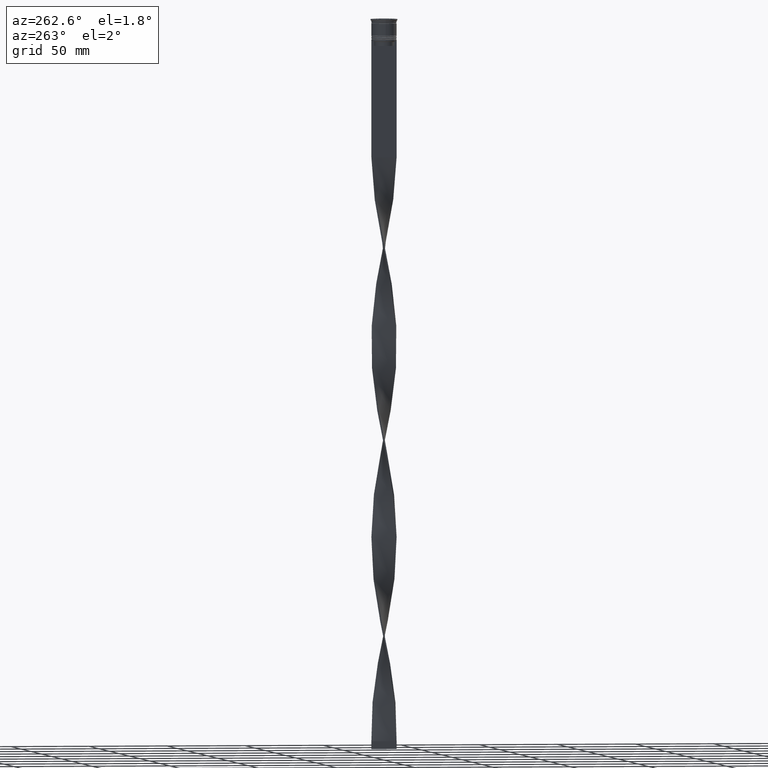
[diagram: clean part render]
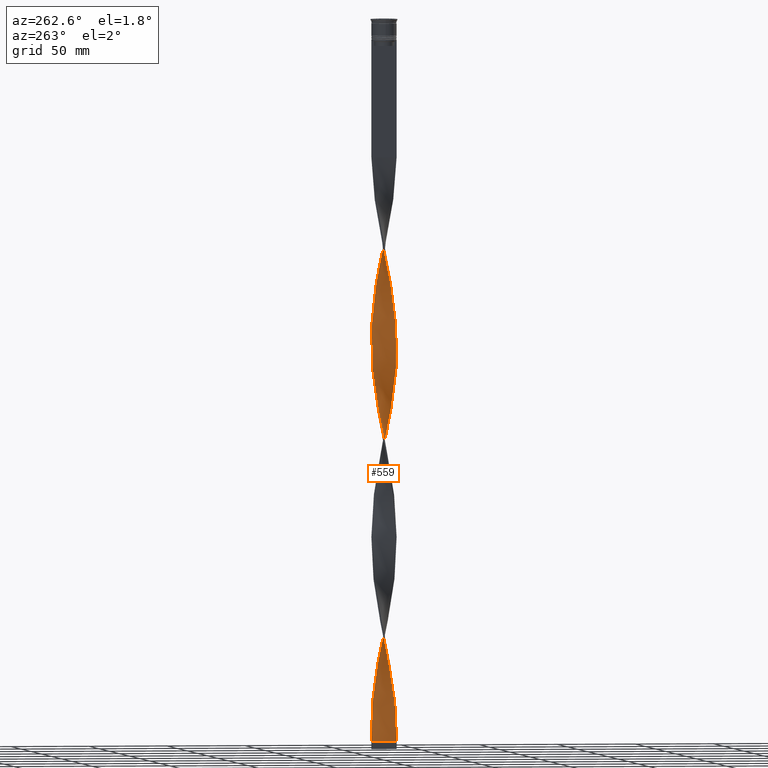
[diagram: same view with one face highlighted and labeled with its STEP entity id]
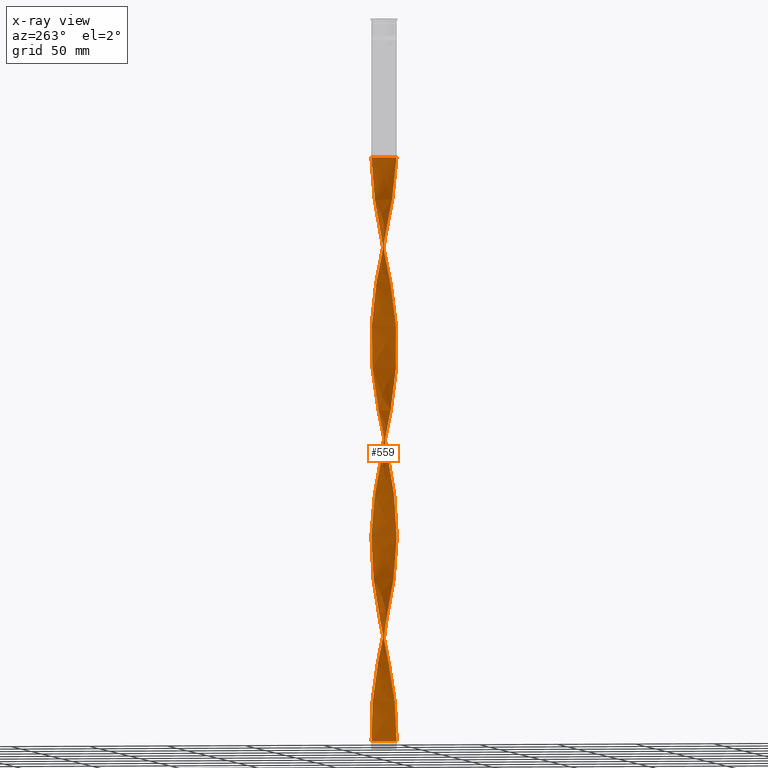
[diagram: x-ray of the same camera — body ghosted, the highlighted face saturated]
A machine part, auxiliary view. The second image highlights one B-rep face of the part: STEP entity #559.
The next image is the same camera in x-ray: the body ghosted, the highlighted face saturated — about 0% of this face is hidden behind the body in this view.
In plain terms, the highlighted face is a freeform B-spline surface patch.
Its self-contained STEP definition (entity closure, byte-faithful):
#8 = CARTESIAN_POINT ( 'NONE',  ( 7.934400707984897494, 1.138106060579904266, -281.5652173913043725 ) ) ;
#19 = CARTESIAN_POINT ( 'NONE',  ( -0.5000000000000011102, -7.999999999999996447, -458.9999999999999432 ) ) ;
#22 = CARTESIAN_POINT ( 'NONE',  ( 7.875764468519596662, 1.588379043952501180, -402.5434782608696196 ) ) ;
#27 = CARTESIAN_POINT ( 'NONE',  ( -0.5000000000000011102, -7.999999999999996447, -211.6666666666666572 ) ) ;
#34 = CARTESIAN_POINT ( 'NONE',  ( 0.5939902197518082128, 7.993570892838771869, -206.2898550724637516 ) ) ;
#46 = CARTESIAN_POINT ( 'NONE',  ( 7.705527183036053884, 2.207906436308476827, -286.9420289855072497 ) ) ;
#54 = CARTESIAN_POINT ( 'NONE',  ( -3.244140533008806671, -7.350249393928927510, -316.5144927536231876 ) ) ;
#66 = CARTESIAN_POINT ( 'NONE',  ( -7.730944694932261996, 2.117190148262233063, -141.7681159420289703 ) ) ;
#71 = CARTESIAN_POINT ( 'NONE',  ( -5.106912555500773720, 6.202423566746443129, -364.9057971014492523 ) ) ;
#80 = CARTESIAN_POINT ( 'NONE',  ( -8.015471360206651852, 0.04710492232210135993, -270.8115942028985614 ) ) ;
#86 = CARTESIAN_POINT ( 'NONE',  ( -7.586124921344937100, 2.646001252571962947, -139.0797101449275317 ) ) ;
#89 = CARTESIAN_POINT ( 'NONE',  ( -4.134100453396769126, -6.889109332278574804, -440.1811594202897595 ) ) ;
#100 = CARTESIAN_POINT ( 'NONE',  ( 8.015471360206651852, -0.04710492232209864683, -147.1449275362318758 ) ) ;
#106 = CARTESIAN_POINT ( 'NONE',  ( 7.947228946841973674, -1.044773691512640212, -270.8115942028985614 ) ) ;
#109 = CARTESIAN_POINT ( 'NONE',  ( -5.839456248204605515, -5.518275516514855816, -429.4275362318841189 ) ) ;
#120 = CARTESIAN_POINT ( 'NONE',  ( 7.947228946841980779, 1.044773691512636882, -152.5217391304347530 ) ) ;
#130 = CARTESIAN_POINT ( 'NONE',  ( -5.436559199960631972, -5.890146353472328400, -184.7826086956521578 ) ) ;
#136 = CARTESIAN_POINT ( 'NONE',  ( 4.134100453396771790, -6.889109332278581910, -106.8188405797101268 ) ) ;
#146 = CARTESIAN_POINT ( 'NONE',  ( 2.122137340211641465, -7.749009424445339356, -343.3985507246376869 ) ) ;
#155 = CARTESIAN_POINT ( 'NONE',  ( -3.157528285648548483, -7.387870401962426392, -198.2246376811594359 ) ) ;
#160 = CARTESIAN_POINT ( 'NONE',  ( 3.157528285648548927, -7.387870401962434386, -101.4420289855072497 ) ) ;
#168 = CARTESIAN_POINT ( 'NONE',  ( 0.5939902197518082128, 7.993570892838771869, -453.6231884057970660 ) ) ;
#175 = CARTESIAN_POINT ( 'NONE',  ( 7.333114266084577615, 3.236577692648022975, -292.3188405797101268 ) ) ;
#179 = CARTESIAN_POINT ( 'NONE',  ( -7.875764468519589556, 1.588379043952501624, -391.7898550724637516 ) ) ;
#188 = CARTESIAN_POINT ( 'NONE',  ( 3.729461898010228538, 7.095147211389627451, -437.4927536231883778 ) ) ;
#195 = CARTESIAN_POINT ( 'NONE',  ( -7.934400707984895718, -1.138106060579906709, -405.2318840579709445 ) ) ;
#201 = CARTESIAN_POINT ( 'NONE',  ( -6.873049228353431239, -4.124462911050402525, -292.3188405797101268 ) ) ;
#216 = CARTESIAN_POINT ( 'NONE',  ( 4.660847909256216504, 6.521234297798387480, -432.1159420289855007 ) ) ;
#228 = CARTESIAN_POINT ( 'NONE',  ( 7.705527183036053884, 2.207906436308476827, -286.9420289855072497 ) ) ;
#231 = CARTESIAN_POINT ( 'NONE',  ( -8.015471360206651852, 0.04710492232210135993, -270.8115942028985614 ) ) ;
#236 = CARTESIAN_POINT ( 'NONE',  ( -7.586124921344937100, 2.646001252571962947, -139.0797101449275317 ) ) ;
#250 = CARTESIAN_POINT ( 'NONE',  ( -6.873049228353423246, 4.124462911050404301, -378.3478260869565020 ) ) ;
#253 = CARTESIAN_POINT ( 'NONE',  ( -3.645814369522657472, 7.138489867120507704, -227.7971014492753454 ) ) ;
#257 = CARTESIAN_POINT ( 'NONE',  ( -2.213065603025609729, 7.723532520004563473, -101.4420289855072497 ) ) ;
#268 = CARTESIAN_POINT ( 'NONE',  ( 7.111726286817906306, 3.738176450121945660, -295.0072463768116222 ) ) ;
#273 = CARTESIAN_POINT ( 'NONE',  ( -0.4999999999999991673, 8.000000000000003553, -211.6666666666666572 ) ) ;
#279 = CARTESIAN_POINT ( 'NONE',  ( -4.214783263011645076, 6.840045028850322950, -112.1956521739130466 ) ) ;
#296 = CARTESIAN_POINT ( 'NONE',  ( 3.244140533008802674, 7.350249393928931063, -192.8478260869565020 ) ) ;
#299 = CARTESIAN_POINT ( 'NONE',  ( 6.590928236321653699, 4.594592357818171990, -418.6739130434783078 ) ) ;
#303 = CARTESIAN_POINT ( 'NONE',  ( -7.554502245351248035, -2.734978935174108283, -165.9637681159420595 ) ) ;
#314 = CARTESIAN_POINT ( 'NONE',  ( 1.140765448138981286, 7.952940848717255484, -450.9347826086956275 ) ) ;
#320 = CARTESIAN_POINT ( 'NONE',  ( 7.370647570865066278, -3.150167358427300446, -260.0579710144927503 ) ) ;
#336 = CARTESIAN_POINT ( 'NONE',  ( 4.660847909256209398, -6.521234297798382151, -238.5507246376811565 ) ) ;
#347 = DIRECTION ( 'NONE',  ( 0.000000000000000000, 1.000000000000000000, 0.000000000000000000 ) ) ;
#348 = CARTESIAN_POINT ( 'NONE',  ( 7.934400707984902823, -1.138106060579910928, -141.7681159420289703 ) ) ;
#356 = CARTESIAN_POINT ( 'NONE',  ( 2.639832812930094974, -7.568439913203886427, -346.0869565217391255 ) ) ;
#361 = CARTESIAN_POINT ( 'NONE',  ( 7.875764468519586003, -1.588379043952506064, -268.1231884057971797 ) ) ;
#367 = CARTESIAN_POINT ( 'NONE',  ( 4.214783263011652181, 6.840045028850328279, -187.4710144927535964 ) ) ;
#374 = CARTESIAN_POINT ( 'NONE',  ( 7.934400707984902823, -1.138106060579910928, -389.1014492753622562 ) ) ;
#380 = CARTESIAN_POINT ( 'NONE',  ( 3.645814369522660137, 7.138489867120498822, -319.2028985507245693 ) ) ;
#388 = CARTESIAN_POINT ( 'NONE',  ( -4.214783263011653069, -6.840045028850328279, -311.1376811594203673 ) ) ;
#396 = CARTESIAN_POINT ( 'NONE',  ( 5.903909729730560052, 5.449262689030147655, -424.0507246376811281 ) ) ;
#397 = CARTESIAN_POINT ( 'NONE',  ( -6.536472323464030509, -4.671738810705480915, -176.7173913043478137 ) ) ;
#401 = CARTESIAN_POINT ( 'NONE',  ( 0.5939902197518053262, -7.993570892838764763, -217.0434782608695627 ) ) ;
#412 = CARTESIAN_POINT ( 'NONE',  ( 2.728603068017209310, 7.536890956966746380, -195.5362318840579405 ) ) ;
#423 = CARTESIAN_POINT ( 'NONE',  ( 8.012249295248929926, 0.5953781837169631608, -278.8768115942028771 ) ) ;
#427 = CARTESIAN_POINT ( 'NONE',  ( -6.187964285834318900, -5.095007163610166145, -426.7391304347826235 ) ) ;
#436 = CARTESIAN_POINT ( 'NONE',  ( -7.730944694932271766, -2.117190148262229066, -281.5652173913043725 ) ) ;
#443 = CARTESIAN_POINT ( 'NONE',  ( 1.676915525582291400, -7.838236684360903261, -222.4202898550724399 ) ) ;
#446 = CARTESIAN_POINT ( 'NONE',  ( -1.584676165788138080, -7.857404243742519334, -453.6231884057970660 ) ) ;
#456 = CARTESIAN_POINT ( 'NONE',  ( -5.106912555500783490, -6.202423566746444905, -305.7608695652173765 ) ) ;
#458 =( BOUNDED_SURFACE ( )  B_SPLINE_SURFACE ( 1, 2, ( 
 ( #2271, #1917, #1634, #1937, #3594, #257, #3576, #3636, #605, #279, #2900, #2876, #4207, #564, #2317, #4276, #2255, #1283, #1218, #236, #3939, #1588, #3610, #4228, #1898, #1965, #1240, #2537, #3293, #303, #2965, #3227, #1298, #585, #3958, #2625, #3869, #651, #3311, #2556, #3245, #3896, #914, #3999, #1081, #1676, #27, #684, #401, #707, #1360, #3353, #2350, #2404, #1697, #4020, #336, #1653, #2982, #1002, #3735, #2687, #1019, #3025, #320, #3328, #1037, #361, #2369, #3006, #3656, #4045, #8, #4315, #46, #2067, #3696, #667, #2047, #3672, #2730, #1407, #1319, #1380, #4063, #3372, #380, #746, #1717, #3044, #2707, #2332, #1060, #2648, #3983, #2387, #3718, #728, #1740, #2024, #3393, #3069, #2002, #71, #2089, #1339, #2666, #3793, #2511, #4083, #467, #2838, #1468, #179, #1099, #3841, #1513, #1783, #3109, #2798, #4174, #1190, #3816, #856, #2112, #3417, #427, #109, #1762, #1803, #3089, #89, #1424, #1492, #3436, #2461, #446, #2424, #2752 ),
 ( #3756, #1440, #3455, #2178, #2773, #160, #770, #136, #3133, #1849, #4130, #2129, #4107, #1125, #1828, #2819, #3775, #4148, #2445, #833, #786, #1142, #806, #2148, #3477, #495, #3158, #1163, #2483, #3498, #512, #3178, #1583, #1627, #3286, #2598, #4288, #878, #2959, #296, #556, #1293, #3569, #2617, #3518, #3951, #273, #2217, #1257, #3538, #1213, #2197, #253, #951, #2942, #3932, #534, #1892, #2249, #2287, #3223, #3262, #1864, #3241, #579, #621, #1911, #905, #231, #1563, #600, #1607, #2552, #4268, #3194, #3606, #201, #2915, #3888, #1277, #1957, #4245, #1541, #2870, #2895, #4201, #4222, #2578, #3912, #2531, #928, #2267, #3590, #1236, #3863, #1931, #356, #995, #2310, #3630, #1646, #1732, #3348, #1668, #2343, #970, #3978, #3667, #1014, #2017, #2327, #4308, #374, #3649, #644, #703, #2701, #22, #1311, #2681, #3000, #3388, #2061, #1978, #2041, #396, #1355, #4013, #1456, #1691, #1032, #2364, #2977, #3691, #3304, #314, #678, #1711, #3019 ) ),
 .UNSPECIFIED., .F., .F., .F. ) 
 B_SPLINE_SURFACE_WITH_KNOTS ( ( 2, 2 ),
 ( 3, 2, 2, 2, 2, 2, 2, 2, 2, 2, 2, 2, 2, 2, 2, 2, 2, 2, 2, 2, 2, 2, 2, 2, 2, 2, 2, 2, 2, 2, 2, 2, 2, 2, 2, 2, 2, 2, 2, 2, 2, 2, 2, 2, 2, 2, 2, 2, 2, 2, 2, 2, 2, 2, 2, 2, 2, 2, 2, 2, 2, 2, 2, 2, 2, 2, 2, 2, 2, 3 ),
 ( 0.000000000000000000, 1.000000000000000000 ),
 ( 0.000000000000000000, 0.01086956521739130405, 0.02173913043478260809, 0.03260869565217391214, 0.04347826086956521618, 0.05434782608695652023, 0.06521739130434782428, 0.07608695652173913526, 0.08695652173913043237, 0.09782608695652174335, 0.1086956521739130405, 0.1195652173913043514, 0.1304347826086956486, 0.1413043478260869457, 0.1521739130434782705, 0.1630434782608695676, 0.1739130434782608647, 0.1847826086956521618, 0.1956521739130434867, 0.2065217391304347838, 0.2173913043478260809, 0.2282608695652173780, 0.2391304347826087029, 0.2500000000000000000, 0.2608695652173912971, 0.2717391304347825942, 0.2826086956521738913, 0.2934782608695652439, 0.3043478260869565410, 0.3152173913043478382, 0.3260869565217391353, 0.3369565217391304324, 0.3478260869565217295, 0.3586956521739130266, 0.3695652173913043237, 0.3804347826086956763, 0.3913043478260869734, 0.4021739130434782705, 0.4130434782608695676, 0.4239130434782608647, 0.4347826086956521618, 0.4456521739130434590, 0.4565217391304347561, 0.4673913043478261087, 0.4782608695652174058, 0.4891304347826087029, 0.5000000000000000000, 0.5108695652173913526, 0.5217391304347825942, 0.5326086956521739468, 0.5434782608695651884, 0.5543478260869565410, 0.5652173913043477826, 0.5760869565217391353, 0.5869565217391304879, 0.5978260869565217295, 0.6086956521739130821, 0.6195652173913043237, 0.6304347826086956763, 0.6413043478260869179, 0.6521739130434782705, 0.6630434782608695121, 0.6739130434782608647, 0.6847826086956522174, 0.6956521739130434590, 0.7065217391304348116, 0.7173913043478260532, 0.7282608695652174058, 0.7391304347826086474, 0.7500000000000000000 ),
 .UNSPECIFIED. ) 
 GEOMETRIC_REPRESENTATION_ITEM ( )  RATIONAL_B_SPLINE_SURFACE ( (
 ( 1.000000000000000000, 0.9976687691905391508, 1.000000000000000000, 0.9976687691905391508, 1.000000000000000000, 0.9976687691905391508, 1.000000000000000000, 0.9976687691905391508, 1.000000000000000000, 0.9976687691905391508, 1.000000000000000000, 0.9976687691905391508, 1.000000000000000000, 0.9976687691905391508, 1.000000000000000000, 0.9976687691905391508, 1.000000000000000000, 0.9976687691905391508, 1.000000000000000000, 0.9976687691905391508, 1.000000000000000000, 0.9976687691905391508, 1.000000000000000000, 0.9976687691905391508, 1.000000000000000000, 0.9976687691905391508, 1.000000000000000000, 0.9976687691905391508, 1.000000000000000000, 0.9976687691905391508, 1.000000000000000000, 0.9976687691905391508, 1.000000000000000000, 0.9976687691905391508, 1.000000000000000000, 0.9976687691905391508, 1.000000000000000000, 0.9976687691905391508, 1.000000000000000000, 0.9976687691905391508, 1.000000000000000000, 0.9976687691905391508, 1.000000000000000000, 0.9976687691905391508, 1.000000000000000000, 0.9976687691905391508, 1.000000000000000000, 0.9976687691905391508, 1.000000000000000000, 0.9976687691905391508, 1.000000000000000000, 0.9976687691905391508, 1.000000000000000000, 0.9976687691905391508, 1.000000000000000000, 0.9976687691905391508, 1.000000000000000000, 0.9976687691905391508, 1.000000000000000000, 0.9976687691905391508, 1.000000000000000000, 0.9976687691905391508, 1.000000000000000000, 0.9976687691905391508, 1.000000000000000000, 0.9976687691905391508, 1.000000000000000000, 0.9976687691905391508, 1.000000000000000000, 0.9976687691905391508, 1.000000000000000000, 0.9976687691905391508, 1.000000000000000000, 0.9976687691905391508, 1.000000000000000000, 0.9976687691905391508, 1.000000000000000000, 0.9976687691905391508, 1.000000000000000000, 0.9976687691905391508, 1.000000000000000000, 0.9976687691905391508, 1.000000000000000000, 0.9976687691905391508, 1.000000000000000000, 0.9976687691905391508, 1.000000000000000000, 0.9976687691905391508, 1.000000000000000000, 0.9976687691905391508, 1.000000000000000000, 0.9976687691905391508, 1.000000000000000000, 0.9976687691905391508, 1.000000000000000000, 0.9976687691905391508, 1.000000000000000000, 0.9976687691905391508, 1.000000000000000000, 0.9976687691905391508, 1.000000000000000000, 0.9976687691905391508, 1.000000000000000000, 0.9976687691905391508, 1.000000000000000000, 0.9976687691905391508, 1.000000000000000000, 0.9976687691905391508, 1.000000000000000000, 0.9976687691905391508, 1.000000000000000000, 0.9976687691905391508, 1.000000000000000000, 0.9976687691905391508, 1.000000000000000000, 0.9976687691905391508, 1.000000000000000000, 0.9976687691905391508, 1.000000000000000000, 0.9976687691905391508, 1.000000000000000000, 0.9976687691905391508, 1.000000000000000000, 0.9976687691905391508, 1.000000000000000000, 0.9976687691905391508, 1.000000000000000000, 0.9976687691905391508, 1.000000000000000000, 0.9976687691905391508, 1.000000000000000000, 0.9976687691905391508, 1.000000000000000000, 0.9976687691905391508, 1.000000000000000000, 0.9976687691905391508, 1.000000000000000000, 0.9976687691905391508, 1.000000000000000000),
 ( 1.000000000000000000, 0.9976687691905391508, 1.000000000000000000, 0.9976687691905391508, 1.000000000000000000, 0.9976687691905391508, 1.000000000000000000, 0.9976687691905391508, 1.000000000000000000, 0.9976687691905391508, 1.000000000000000000, 0.9976687691905391508, 1.000000000000000000, 0.9976687691905391508, 1.000000000000000000, 0.9976687691905391508, 1.000000000000000000, 0.9976687691905391508, 1.000000000000000000, 0.9976687691905391508, 1.000000000000000000, 0.9976687691905391508, 1.000000000000000000, 0.9976687691905391508, 1.000000000000000000, 0.9976687691905391508, 1.000000000000000000, 0.9976687691905391508, 1.000000000000000000, 0.9976687691905391508, 1.000000000000000000, 0.9976687691905391508, 1.000000000000000000, 0.9976687691905391508, 1.000000000000000000, 0.9976687691905391508, 1.000000000000000000, 0.9976687691905391508, 1.000000000000000000, 0.9976687691905391508, 1.000000000000000000, 0.9976687691905391508, 1.000000000000000000, 0.9976687691905391508, 1.000000000000000000, 0.9976687691905391508, 1.000000000000000000, 0.9976687691905391508, 1.000000000000000000, 0.9976687691905391508, 1.000000000000000000, 0.9976687691905391508, 1.000000000000000000, 0.9976687691905391508, 1.000000000000000000, 0.9976687691905391508, 1.000000000000000000, 0.9976687691905391508, 1.000000000000000000, 0.9976687691905391508, 1.000000000000000000, 0.9976687691905391508, 1.000000000000000000, 0.9976687691905391508, 1.000000000000000000, 0.9976687691905391508, 1.000000000000000000, 0.9976687691905391508, 1.000000000000000000, 0.9976687691905391508, 1.000000000000000000, 0.9976687691905391508, 1.000000000000000000, 0.9976687691905391508, 1.000000000000000000, 0.9976687691905391508, 1.000000000000000000, 0.9976687691905391508, 1.000000000000000000, 0.9976687691905391508, 1.000000000000000000, 0.9976687691905391508, 1.000000000000000000, 0.9976687691905391508, 1.000000000000000000, 0.9976687691905391508, 1.000000000000000000, 0.9976687691905391508, 1.000000000000000000, 0.9976687691905391508, 1.000000000000000000, 0.9976687691905391508, 1.000000000000000000, 0.9976687691905391508, 1.000000000000000000, 0.9976687691905391508, 1.000000000000000000, 0.9976687691905391508, 1.000000000000000000, 0.9976687691905391508, 1.000000000000000000, 0.9976687691905391508, 1.000000000000000000, 0.9976687691905391508, 1.000000000000000000, 0.9976687691905391508, 1.000000000000000000, 0.9976687691905391508, 1.000000000000000000, 0.9976687691905391508, 1.000000000000000000, 0.9976687691905391508, 1.000000000000000000, 0.9976687691905391508, 1.000000000000000000, 0.9976687691905391508, 1.000000000000000000, 0.9976687691905391508, 1.000000000000000000, 0.9976687691905391508, 1.000000000000000000, 0.9976687691905391508, 1.000000000000000000, 0.9976687691905391508, 1.000000000000000000, 0.9976687691905391508, 1.000000000000000000, 0.9976687691905391508, 1.000000000000000000, 0.9976687691905391508, 1.000000000000000000, 0.9976687691905391508, 1.000000000000000000, 0.9976687691905391508, 1.000000000000000000, 0.9976687691905391508, 1.000000000000000000, 0.9976687691905391508, 1.000000000000000000) ) ) 
 REPRESENTATION_ITEM ( '' )  SURFACE ( )  );
#463 = CARTESIAN_POINT ( 'NONE',  ( 0.04721499136463248869, -8.034200936960287365, -214.3550724637681242 ) ) ;
#465 = CARTESIAN_POINT ( 'NONE',  ( 0.5000000000000001110, 7.999999999999996447, -88.00000000000000000 ) ) ;
#467 = CARTESIAN_POINT ( 'NONE',  ( -7.370647570865066278, 3.150167358427299558, -383.7246376811593791 ) ) ;
#490 = CARTESIAN_POINT ( 'NONE',  ( -6.590928236321647482, 4.594592357818171990, -128.3260869565217206 ) ) ;
#495 = CARTESIAN_POINT ( 'NONE',  ( 7.875764468519596662, 1.588379043952501180, -155.2101449275362199 ) ) ;
#503 = CARTESIAN_POINT ( 'NONE',  ( 6.536472323464036727, -4.671738810705485356, -370.2826086956521863 ) ) ;
#509 = CARTESIAN_POINT ( 'NONE',  ( -4.214783263011645964, 6.840045028850323838, -359.5289855072463752 ) ) ;
#512 = CARTESIAN_POINT ( 'NONE',  ( 6.873049228353429463, 4.124462911050406078, -168.6521739130434696 ) ) ;
#520 = CARTESIAN_POINT ( 'NONE',  ( 1.047214991364636472, -7.965799063039713523, -338.0217391304347530 ) ) ;
#530 = CARTESIAN_POINT ( 'NONE',  ( -7.155170220385199009, 3.654333464282637500, -381.0362318840579974 ) ) ;
#534 = CARTESIAN_POINT ( 'NONE',  ( -5.436559199960634636, 5.890146353472335505, -238.5507246376811565 ) ) ;
#537 = CARTESIAN_POINT ( 'NONE',  ( 0.5000000000000001110, -8.000000000000003553, -88.00000000000000000 ) ) ;
#540 = CARTESIAN_POINT ( 'NONE',  ( -0.4999999999999991673, 8.000000000000003553, -458.9999999999999432 ) ) ;
#541 = CARTESIAN_POINT ( 'NONE',  ( -2.728603068017210198, -7.536890956966746380, -319.2028985507245693 ) ) ;
#549 = CARTESIAN_POINT ( 'NONE',  ( -4.660847909256209398, 6.521234297798383928, -362.2173913043478137 ) ) ;
#556 = CARTESIAN_POINT ( 'NONE',  ( 2.728603068017209310, 7.536890956966746380, -195.5362318840579405 ) ) ;
#559 = ADVANCED_FACE ( 'NONE', ( #2948 ), #458, .T. ) ;
#564 = CARTESIAN_POINT ( 'NONE',  ( -5.903909729730553835, 5.449262689030142326, -122.9492753623188577 ) ) ;
#568 = CARTESIAN_POINT ( 'NONE',  ( 3.157528285648548927, -7.387870401962434386, -348.7753623188405641 ) ) ;
#575 = CARTESIAN_POINT ( 'NONE',  ( -5.903909729730553835, 5.449262689030142326, -370.2826086956521863 ) ) ;
#579 = CARTESIAN_POINT ( 'NONE',  ( -7.705527183036060102, 2.207906436308481712, -260.0579710144927503 ) ) ;
#585 = CARTESIAN_POINT ( 'NONE',  ( -6.536472323464030509, -4.671738810705480915, -176.7173913043478137 ) ) ;
#597 = CARTESIAN_POINT ( 'NONE',  ( -7.554502245351247147, -2.734978935174108283, -413.2971014492753739 ) ) ;
#600 = CARTESIAN_POINT ( 'NONE',  ( -7.947228946841980779, -1.044773691512637548, -276.1884057971014386 ) ) ;
#605 = CARTESIAN_POINT ( 'NONE',  ( -3.729461898010222320, 7.095147211389622122, -109.5072463768115796 ) ) ;
#621 = CARTESIAN_POINT ( 'NONE',  ( -7.856552120720867727, 1.680833937442850035, -262.7463768115941889 ) ) ;
#622 = CARTESIAN_POINT ( 'NONE',  ( -0.04721499136463552099, 8.034200936960287365, -90.68840579710145278 ) ) ;
#644 = CARTESIAN_POINT ( 'NONE',  ( 8.015471360206651852, -0.04710492232209864683, -394.4782608695651902 ) ) ;
#651 = CARTESIAN_POINT ( 'NONE',  ( -5.033662151716655764, -6.262017190429802760, -187.4710144927535964 ) ) ;
#656 = CARTESIAN_POINT ( 'NONE',  ( -0.5000000000000004441, -2.666666666666663410, -458.9999999999999432 ) ) ;
#667 = CARTESIAN_POINT ( 'NONE',  ( 7.111726286817906306, 3.738176450121945660, -295.0072463768116791 ) ) ;
#673 = CARTESIAN_POINT ( 'NONE',  ( 6.824099305140972405, -4.204957630413717062, -125.6376811594202820 ) ) ;
#678 = CARTESIAN_POINT ( 'NONE',  ( 0.5939902197518082128, 7.993570892838771869, -453.6231884057970660 ) ) ;
#684 = CARTESIAN_POINT ( 'NONE',  ( 0.04721499136463248175, -8.034200936960285588, -214.3550724637681242 ) ) ;
#694 = CARTESIAN_POINT ( 'NONE',  ( -7.856552120720868615, 1.680833937442850035, -262.7463768115941889 ) ) ;
#703 = CARTESIAN_POINT ( 'NONE',  ( 8.018693425164372002, 0.5011683390727725840, -397.1666666666666288 ) ) ;
#707 = CARTESIAN_POINT ( 'NONE',  ( 1.140765448138977955, -7.952940848717248379, -219.7318840579710297 ) ) ;
#714 = CARTESIAN_POINT ( 'NONE',  ( -6.824099305140972405, 4.204957630413717951, -249.3043478260869392 ) ) ;
#724 = CARTESIAN_POINT ( 'NONE',  ( -6.187964285834318900, -5.095007163610166145, -179.4057971014492807 ) ) ;
#728 = CARTESIAN_POINT ( 'NONE',  ( -2.213065603025609729, 7.723532520004563473, -348.7753623188405072 ) ) ;
#734 = CARTESIAN_POINT ( 'NONE',  ( 4.660847909256216504, 6.521234297798387480, -184.7826086956521578 ) ) ;
#743 = CARTESIAN_POINT ( 'NONE',  ( 7.730944694932262884, -2.117190148262230398, -265.4347826086956275 ) ) ;
#746 = CARTESIAN_POINT ( 'NONE',  ( 3.157528285648549371, 7.387870401962426392, -321.8913043478260647 ) ) ;
#754 = CARTESIAN_POINT ( 'NONE',  ( 1.140765448138981508, 7.952940848717254596, -203.6014492753623415 ) ) ;
#764 = CARTESIAN_POINT ( 'NONE',  ( -5.839456248204605515, -5.518275516514856704, -182.0942028985507477 ) ) ;
#770 = CARTESIAN_POINT ( 'NONE',  ( 3.645814369522659693, -7.138489867120506815, -104.1304347826086882 ) ) ;
#777 = CARTESIAN_POINT ( 'NONE',  ( 5.106912555500779050, 6.202423566746448458, -182.0942028985507477 ) ) ;
#783 = CARTESIAN_POINT ( 'NONE',  ( -6.824099305140967076, -4.204957630413713510, -174.0289855072463752 ) ) ;
#786 = CARTESIAN_POINT ( 'NONE',  ( 7.934400707984902823, -1.138106060579910928, -141.7681159420289703 ) ) ;
#797 = CARTESIAN_POINT ( 'NONE',  ( -0.4999999999999991673, 8.000000000000003553, -458.9999999999999432 ) ) ;
#803 = CARTESIAN_POINT ( 'NONE',  ( 7.934400707984897494, 1.138106060579904266, -281.5652173913043725 ) ) ;
#806 = CARTESIAN_POINT ( 'NONE',  ( 8.015471360206651852, -0.04710492232209864683, -147.1449275362318758 ) ) ;
#815 = CARTESIAN_POINT ( 'NONE',  ( 3.645814369522659693, -7.138489867120506815, -351.4637681159420595 ) ) ;
#827 = CARTESIAN_POINT ( 'NONE',  ( -7.111726286817906306, -3.738176450121946548, -418.6739130434783078 ) ) ;
#833 = CARTESIAN_POINT ( 'NONE',  ( 7.856552120720867727, -1.680833937442850701, -139.0797101449275317 ) ) ;
#842 = CARTESIAN_POINT ( 'NONE',  ( 8.015471360206651852, -0.04710492232209864683, -394.4782608695651902 ) ) ;
#852 = CARTESIAN_POINT ( 'NONE',  ( -7.586124921344937100, 2.646001252571962947, -386.4130434782609314 ) ) ;
#856 = CARTESIAN_POINT ( 'NONE',  ( -7.111726286817905418, -3.738176450121946104, -418.6739130434783078 ) ) ;
#874 = CARTESIAN_POINT ( 'NONE',  ( -7.730944694932261996, 2.117190148262233063, -389.1014492753622562 ) ) ;
#878 = CARTESIAN_POINT ( 'NONE',  ( 4.214783263011651293, 6.840045028850328279, -187.4710144927535964 ) ) ;
#887 = CARTESIAN_POINT ( 'NONE',  ( 5.505411142615669107, 5.825843127888296280, -426.7391304347826235 ) ) ;
#896 = CARTESIAN_POINT ( 'NONE',  ( -2.728603068017203537, 7.536890956966741939, -351.4637681159420595 ) ) ;
#905 = CARTESIAN_POINT ( 'NONE',  ( -8.012249295248937031, 0.5953781837169740410, -268.1231884057971797 ) ) ;
#914 = CARTESIAN_POINT ( 'NONE',  ( -2.639832812930093198, -7.568439913203878433, -200.9130434782608745 ) ) ;
#925 = CARTESIAN_POINT ( 'NONE',  ( -5.839456248204605515, -5.518275516514856704, -429.4275362318840621 ) ) ;
#928 = CARTESIAN_POINT ( 'NONE',  ( -0.5939902197518127647, -7.993570892838771869, -329.9565217391304373 ) ) ;
#951 = CARTESIAN_POINT ( 'NONE',  ( -4.134100453396770902, 6.889109332278582798, -230.4855072463767840 ) ) ;
#960 = CARTESIAN_POINT ( 'NONE',  ( -0.4999999999999991673, 8.000000000000003553, -458.9999999999999432 ) ) ;
#970 = CARTESIAN_POINT ( 'NONE',  ( 6.536472323464036727, -4.671738810705485356, -370.2826086956521863 ) ) ;
#992 = EDGE_CURVE ( 'NONE', #1746, #2439, #3334, .T. ) ;
#995 = CARTESIAN_POINT ( 'NONE',  ( 3.157528285648548927, -7.387870401962434386, -348.7753623188405072 ) ) ;
#1002 = CARTESIAN_POINT ( 'NONE',  ( 5.903909729730552058, -5.449262689030144102, -246.6159420289854722 ) ) ;
#1008 = CARTESIAN_POINT ( 'NONE',  ( 4.134100453396771790, -6.889109332278581022, -106.8188405797101410 ) ) ;
#1013 = EDGE_CURVE ( 'NONE', #1268, #1333, #1992, .T. ) ;
#1014 = CARTESIAN_POINT ( 'NONE',  ( 7.333114266084581168, -3.236577692648031412, -378.3478260869565020 ) ) ;
#1015 = CARTESIAN_POINT ( 'NONE',  ( -4.214783263011645964, 6.840045028850323838, -112.1956521739130466 ) ) ;
#1019 = CARTESIAN_POINT ( 'NONE',  ( 6.873049228353421469, -4.124462911050407854, -254.6811594202898448 ) ) ;
#1026 = CARTESIAN_POINT ( 'NONE',  ( 2.122137340211641465, -7.749009424445339356, -96.06521739130434412 ) ) ;
#1027 = EDGE_LOOP ( 'NONE', ( #3860, #2864, #4284, #4155 ) ) ;
#1032 = CARTESIAN_POINT ( 'NONE',  ( 3.729461898010228538, 7.095147211389627451, -437.4927536231883778 ) ) ;
#1037 = CARTESIAN_POINT ( 'NONE',  ( 7.730944694932262884, -2.117190148262230398, -265.4347826086956275 ) ) ;
#1046 = CARTESIAN_POINT ( 'NONE',  ( -0.5000000000000011102, -7.999999999999996447, -458.9999999999999432 ) ) ;
#1047 = CARTESIAN_POINT ( 'NONE',  ( -5.903909729730559164, -5.449262689030146767, -300.3840579710145562 ) ) ;
#1060 = CARTESIAN_POINT ( 'NONE',  ( 0.5000000000000001110, 7.999999999999996447, -335.3333333333333144 ) ) ;
#1068 = CARTESIAN_POINT ( 'NONE',  ( -7.947228946841980779, -1.044773691512637548, -276.1884057971014386 ) ) ;
#1077 = CARTESIAN_POINT ( 'NONE',  ( 7.155170220385198121, -3.654333464282639721, -257.3695652173913118 ) ) ;
#1081 = CARTESIAN_POINT ( 'NONE',  ( -1.584676165788138080, -7.857404243742519334, -206.2898550724637516 ) ) ;
#1088 = CARTESIAN_POINT ( 'NONE',  ( 6.247418983026106432, 5.021927523424159823, -174.0289855072463752 ) ) ;
#1095 = CARTESIAN_POINT ( 'NONE',  ( 0.5939902197518053262, -7.993570892838764763, -217.0434782608695627 ) ) ;
#1099 = CARTESIAN_POINT ( 'NONE',  ( -7.947228946841973674, 1.044773691512637548, -394.4782608695651902 ) ) ;
#1111 = CARTESIAN_POINT ( 'NONE',  ( -8.012249295248937031, 0.5953781837169740410, -268.1231884057971229 ) ) ;
#1122 = CARTESIAN_POINT ( 'NONE',  ( -5.505411142615662001, 5.825843127888292727, -120.2608695652173907 ) ) ;
#1125 = CARTESIAN_POINT ( 'NONE',  ( 6.536472323464036727, -4.671738810705485356, -122.9492753623188577 ) ) ;
#1132 = CARTESIAN_POINT ( 'NONE',  ( -5.839456248204609068, 5.518275516514862922, -241.2391304347826235 ) ) ;
#1138 = CARTESIAN_POINT ( 'NONE',  ( -4.660847909256209398, 6.521234297798383928, -114.8840579710144851 ) ) ;
#1142 = CARTESIAN_POINT ( 'NONE',  ( 8.012249295248937031, -0.5953781837169696001, -144.4565217391304657 ) ) ;
#1151 = CARTESIAN_POINT ( 'NONE',  ( 7.586124921344944205, 2.646001252571962059, -407.9202898550724399 ) ) ;
#1159 = CARTESIAN_POINT ( 'NONE',  ( -3.157528285648548483, -7.387870401962426392, -445.5579710144927503 ) ) ;
#1163 = CARTESIAN_POINT ( 'NONE',  ( 7.586124921344944205, 2.646001252571962059, -160.5869565217391823 ) ) ;
#1174 = CARTESIAN_POINT ( 'NONE',  ( 1.676915525582295619, 7.838236684360910367, -448.2463768115941889 ) ) ;
#1186 = CARTESIAN_POINT ( 'NONE',  ( -4.583881302556713777, -6.575563261354187006, -437.4927536231883778 ) ) ;
#1190 = CARTESIAN_POINT ( 'NONE',  ( -7.554502245351248035, -2.734978935174108283, -413.2971014492753739 ) ) ;
#1208 = CARTESIAN_POINT ( 'NONE',  ( -8.012249295248929926, -0.5953781837169674906, -402.5434782608696196 ) ) ;
#1213 = CARTESIAN_POINT ( 'NONE',  ( -2.639832812930093198, 7.568439913203886427, -222.4202898550724399 ) ) ;
#1218 = CARTESIAN_POINT ( 'NONE',  ( -7.370647570865066278, 3.150167358427299558, -136.3913043478260931 ) ) ;
#1221 = CARTESIAN_POINT ( 'NONE',  ( 7.875764468519596662, 1.588379043952501402, -402.5434782608696196 ) ) ;
#1230 = CARTESIAN_POINT ( 'NONE',  ( -6.187964285834318900, -5.095007163610166145, -426.7391304347826235 ) ) ;
#1236 = CARTESIAN_POINT ( 'NONE',  ( 1.047214991364636472, -7.965799063039713523, -338.0217391304347530 ) ) ;
#1240 = CARTESIAN_POINT ( 'NONE',  ( -7.934400707984895718, -1.138106060579906709, -157.8985507246376585 ) ) ;
#1244 = CARTESIAN_POINT ( 'NONE',  ( -0.4999999999999997780, 2.666666666666670515, -458.9999999999999432 ) ) ;
#1249 = CARTESIAN_POINT ( 'NONE',  ( -6.590928236321647482, 4.594592357818171990, -375.6594202898551771 ) ) ;
#1257 = CARTESIAN_POINT ( 'NONE',  ( -1.584676165788137192, 7.857404243742526440, -217.0434782608695627 ) ) ;
#1268 = VERTEX_POINT ( 'NONE', #1046 ) ;
#1272 = CARTESIAN_POINT ( 'NONE',  ( 7.554502245351252476, -2.734978935174111836, -133.7028985507246546 ) ) ;
#1277 = CARTESIAN_POINT ( 'NONE',  ( -5.903909729730560052, -5.449262689030146767, -300.3840579710144993 ) ) ;
#1283 = CARTESIAN_POINT ( 'NONE',  ( -7.155170220385199009, 3.654333464282637500, -133.7028985507246546 ) ) ;
#1293 = CARTESIAN_POINT ( 'NONE',  ( 2.213065603025613282, 7.723532520004568802, -198.2246376811594359 ) ) ;
#1298 = CARTESIAN_POINT ( 'NONE',  ( -6.824099305140967076, -4.204957630413713510, -174.0289855072463752 ) ) ;
#1311 = CARTESIAN_POINT ( 'NONE',  ( 7.730944694932269989, 2.117190148262231286, -405.2318840579709445 ) ) ;
#1319 = CARTESIAN_POINT ( 'NONE',  ( 5.436559199960631972, 5.890146353472327512, -308.4492753623188150 ) ) ;
#1333 = VERTEX_POINT ( 'NONE', #540 ) ;
#1335 = CARTESIAN_POINT ( 'NONE',  ( -3.729461898010222320, 7.095147211389622122, -109.5072463768115796 ) ) ;
#1339 = CARTESIAN_POINT ( 'NONE',  ( -5.903909729730553835, 5.449262689030142326, -370.2826086956521863 ) ) ;
#1355 = CARTESIAN_POINT ( 'NONE',  ( 5.505411142615669107, 5.825843127888296280, -426.7391304347826235 ) ) ;
#1360 = CARTESIAN_POINT ( 'NONE',  ( 1.676915525582291400, -7.838236684360903261, -222.4202898550724399 ) ) ;
#1367 = CARTESIAN_POINT ( 'NONE',  ( 7.730944694932269989, 2.117190148262231286, -157.8985507246376585 ) ) ;
#1380 = CARTESIAN_POINT ( 'NONE',  ( 5.033662151716655764, 6.262017190429801872, -311.1376811594204241 ) ) ;
#1393 = CARTESIAN_POINT ( 'NONE',  ( -2.639832812930093198, 7.568439913203886427, -222.4202898550724399 ) ) ;
#1401 = CARTESIAN_POINT ( 'NONE',  ( -7.111726286817906306, -3.738176450121946548, -171.3405797101449366 ) ) ;
#1407 = CARTESIAN_POINT ( 'NONE',  ( 5.839456248204608180, 5.518275516514852264, -305.7608695652173196 ) ) ;
#1415 = CARTESIAN_POINT ( 'NONE',  ( 2.213065603025613282, 7.723532520004568802, -198.2246376811594359 ) ) ;
#1421 = CARTESIAN_POINT ( 'NONE',  ( -7.155170220385199009, 3.654333464282637500, -133.7028985507246546 ) ) ;
#1424 = CARTESIAN_POINT ( 'NONE',  ( -3.645814369522659248, -7.138489867120498822, -442.8695652173913118 ) ) ;
#1431 = CARTESIAN_POINT ( 'NONE',  ( 7.155170220385206115, 3.654333464282639277, -165.9637681159420595 ) ) ;
#1437 = CARTESIAN_POINT ( 'NONE',  ( -7.554502245351247147, -2.734978935174108283, -165.9637681159420595 ) ) ;
#1440 = CARTESIAN_POINT ( 'NONE',  ( 1.047214991364636472, -7.965799063039713523, -90.68840579710145278 ) ) ;
#1451 = CARTESIAN_POINT ( 'NONE',  ( 1.676915525582295619, 7.838236684360910367, -200.9130434782608745 ) ) ;
#1456 = CARTESIAN_POINT ( 'NONE',  ( 4.660847909256216504, 6.521234297798387480, -432.1159420289855007 ) ) ;
#1464 = CARTESIAN_POINT ( 'NONE',  ( 3.244140533008798233, -7.350249393928924846, -230.4855072463767840 ) ) ;
#1468 = CARTESIAN_POINT ( 'NONE',  ( -7.730944694932261996, 2.117190148262233063, -389.1014492753622562 ) ) ;
#1476 = CARTESIAN_POINT ( 'NONE',  ( 0.04721499136463856022, 8.034200936960294470, -456.3115942028985614 ) ) ;
#1484 = CARTESIAN_POINT ( 'NONE',  ( 6.873049228353421469, -4.124462911050407854, -254.6811594202898448 ) ) ;
#1492 = CARTESIAN_POINT ( 'NONE',  ( -3.157528285648548483, -7.387870401962426392, -445.5579710144927503 ) ) ;
#1508 = CARTESIAN_POINT ( 'NONE',  ( -1.676915525582293620, 7.838236684360903261, -346.0869565217391255 ) ) ;
#1513 = CARTESIAN_POINT ( 'NONE',  ( -8.015471360206644746, -0.04710492232209712721, -399.8550724637680673 ) ) ;
#1523 = CARTESIAN_POINT ( 'NONE',  ( 3.244140533008802674, 7.350249393928931063, -440.1811594202898164 ) ) ;
#1538 = CARTESIAN_POINT ( 'NONE',  ( -6.247418983026099326, 5.021927523424156270, -372.9710144927536248 ) ) ;
#1541 = CARTESIAN_POINT ( 'NONE',  ( -4.660847909256217392, -6.521234297798386592, -308.4492753623188150 ) ) ;
#1559 = CARTESIAN_POINT ( 'NONE',  ( -8.018693425164364896, 0.5011683390727735832, -397.1666666666666856 ) ) ;
#1563 = CARTESIAN_POINT ( 'NONE',  ( -8.018693425164372002, -0.5011683390727715848, -273.4999999999999432 ) ) ;
#1579 = CARTESIAN_POINT ( 'NONE',  ( -1.140765448138977955, 7.952940848717247491, -343.3985507246376869 ) ) ;
#1583 = CARTESIAN_POINT ( 'NONE',  ( 6.247418983026106432, 5.021927523424159823, -174.0289855072463752 ) ) ;
#1588 = CARTESIAN_POINT ( 'NONE',  ( -7.875764468519589556, 1.588379043952501624, -144.4565217391304657 ) ) ;
#1598 = CARTESIAN_POINT ( 'NONE',  ( -5.436559199960631972, -5.890146353472328400, -432.1159420289855007 ) ) ;
#1607 = CARTESIAN_POINT ( 'NONE',  ( -7.875764468519596662, -1.588379043952496961, -278.8768115942028203 ) ) ;
#1627 = CARTESIAN_POINT ( 'NONE',  ( 5.903909729730560052, 5.449262689030147655, -176.7173913043478137 ) ) ;
#1630 = CARTESIAN_POINT ( 'NONE',  ( -1.140765448138978844, -7.952940848717254596, -327.2681159420290555 ) ) ;
#1634 = CARTESIAN_POINT ( 'NONE',  ( -0.5939902197518068805, 7.993570892838764763, -93.37681159420290555 ) ) ;
#1641 = CARTESIAN_POINT ( 'NONE',  ( 5.436559199960634636, -5.890146353472335505, -114.8840579710144851 ) ) ;
#1646 = CARTESIAN_POINT ( 'NONE',  ( 4.583881302556714665, -6.575563261354194999, -356.8405797101449366 ) ) ;
#1647 = CARTESIAN_POINT ( 'NONE',  ( -1.676915525582293620, 7.838236684360903261, -98.75362318840578268 ) ) ;
#1653 = CARTESIAN_POINT ( 'NONE',  ( 5.106912555500772832, -6.202423566746444017, -241.2391304347826519 ) ) ;
#1659 = CARTESIAN_POINT ( 'NONE',  ( 7.333114266084581168, -3.236577692648031412, -131.0144927536231876 ) ) ;
#1668 = CARTESIAN_POINT ( 'NONE',  ( 5.839456248204610844, -5.518275516514861145, -364.9057971014492523 ) ) ;
#1676 = CARTESIAN_POINT ( 'NONE',  ( -1.047214991364638470, -7.965799063039706418, -208.9782608695651902 ) ) ;
#1691 = CARTESIAN_POINT ( 'NONE',  ( 4.214783263011651293, 6.840045028850328279, -434.8043478260869961 ) ) ;
#1697 = CARTESIAN_POINT ( 'NONE',  ( 3.729461898010220100, -7.095147211389623898, -233.1739130434782510 ) ) ;
#1703 = CARTESIAN_POINT ( 'NONE',  ( -7.705527183036060102, 2.207906436308481712, -260.0579710144927503 ) ) ;
#1711 = CARTESIAN_POINT ( 'NONE',  ( 0.04721499136463855328, 8.034200936960292694, -456.3115942028985614 ) ) ;
#1717 = CARTESIAN_POINT ( 'NONE',  ( 2.639832812930094086, 7.568439913203878433, -324.5797101449275033 ) ) ;
#1724 = CARTESIAN_POINT ( 'NONE',  ( -5.436559199960634636, 5.890146353472335505, -238.5507246376811565 ) ) ;
#1732 = CARTESIAN_POINT ( 'NONE',  ( 5.033662151716659316, -6.262017190429809865, -359.5289855072463752 ) ) ;
#1733 = CARTESIAN_POINT ( 'NONE',  ( 7.370647570865066278, -3.150167358427300446, -260.0579710144927503 ) ) ;
#1740 = CARTESIAN_POINT ( 'NONE',  ( -2.728603068017203537, 7.536890956966741939, -351.4637681159420595 ) ) ;
#1746 = VERTEX_POINT ( 'NONE', #537 ) ;
#1751 = CARTESIAN_POINT ( 'NONE',  ( -3.645814369522657472, 7.138489867120507704, -227.7971014492753454 ) ) ;
#1759 = CARTESIAN_POINT ( 'NONE',  ( -6.247418983026099326, 5.021927523424156270, -125.6376811594202820 ) ) ;
#1762 = CARTESIAN_POINT ( 'NONE',  ( -5.436559199960631972, -5.890146353472328400, -432.1159420289855007 ) ) ;
#1772 = CARTESIAN_POINT ( 'NONE',  ( -6.590928236321654587, -4.594592357818171990, -295.0072463768116222 ) ) ;
#1779 = CARTESIAN_POINT ( 'NONE',  ( 4.660847909256209398, -6.521234297798382151, -238.5507246376811565 ) ) ;
#1783 = CARTESIAN_POINT ( 'NONE',  ( -8.012249295248929926, -0.5953781837169673796, -402.5434782608696196 ) ) ;
#1791 = CARTESIAN_POINT ( 'NONE',  ( -0.4999999999999991673, 8.000000000000003553, -211.6666666666666572 ) ) ;
#1799 = CARTESIAN_POINT ( 'NONE',  ( 2.213065603025609285, -7.723532520004562585, -225.1086956521739353 ) ) ;
#1803 = CARTESIAN_POINT ( 'NONE',  ( -5.033662151716655764, -6.262017190429802760, -434.8043478260869961 ) ) ;
#1825 = CARTESIAN_POINT ( 'NONE',  ( -7.370647570865066278, 3.150167358427299558, -136.3913043478260931 ) ) ;
#1828 = CARTESIAN_POINT ( 'NONE',  ( 6.824099305140972405, -4.204957630413717062, -125.6376811594202820 ) ) ;
#1836 = CARTESIAN_POINT ( 'NONE',  ( 7.370647570865075160, 3.150167358427300890, -410.6086956521738216 ) ) ;
#1845 = CARTESIAN_POINT ( 'NONE',  ( 3.157528285648549371, 7.387870401962426392, -321.8913043478260647 ) ) ;
#1849 = CARTESIAN_POINT ( 'NONE',  ( 5.033662151716659316, -6.262017190429809865, -112.1956521739130466 ) ) ;
#1856 = CARTESIAN_POINT ( 'NONE',  ( 4.583881302556714665, -6.575563261354194999, -356.8405797101449366 ) ) ;
#1861 = CARTESIAN_POINT ( 'NONE',  ( -1.047214991364638470, -7.965799063039706418, -456.3115942028985614 ) ) ;
#1864 = CARTESIAN_POINT ( 'NONE',  ( -7.333114266084579391, 3.236577692648035853, -254.6811594202898448 ) ) ;
#1872 = CARTESIAN_POINT ( 'NONE',  ( 7.934400707984902823, -1.138106060579910928, -389.1014492753622562 ) ) ;
#1886 = CARTESIAN_POINT ( 'NONE',  ( 4.134100453396772679, 6.889109332278572140, -316.5144927536231876 ) ) ;
#1892 = CARTESIAN_POINT ( 'NONE',  ( -5.839456248204609956, 5.518275516514862034, -241.2391304347826519 ) ) ;
#1898 = CARTESIAN_POINT ( 'NONE',  ( -8.015471360206644746, -0.04710492232209712721, -152.5217391304347530 ) ) ;
#1902 = CARTESIAN_POINT ( 'NONE',  ( 0.5000000000000001110, -8.000000000000003553, -335.3333333333333144 ) ) ;
#1908 = CARTESIAN_POINT ( 'NONE',  ( 6.187964285834320677, 5.095007163610164369, -303.0724637681159379 ) ) ;
#1911 = CARTESIAN_POINT ( 'NONE',  ( -7.934400707984902823, 1.138106060579908485, -265.4347826086956275 ) ) ;
#1916 =( BOUNDED_CURVE ( )  B_SPLINE_CURVE ( 2, ( #4040, #622, #2960, #2702, #1647, #3996, #2328, #3001, #1335, #1015, #1138, #3125, #1122, #3061, #1759, #490, #2401, #1421, #1825, #86, #66, #3471, #3714, #3451, #3155, #2767, #2440, #2815, #3432, #1437, #3771, #1401, #783, #397, #724, #764, #130, #2108, #2458, #4080, #2420, #155, #2748, #3752, #2144, #2126, #2062, #463, #1095, #4145, #443, #1799, #3410, #1464, #3086, #2794, #1779, #2384, #4124, #3389, #3104, #3790, #1484, #1077, #1733, #2727, #743, #4060, #106, #3732, #2083, #423, #803, #4103, #228, #2507, #175, #268, #3534, #4240, #1908, #3565, #4218, #3587, #2243, #1886, #3191, #1845, #2174, #3494, #3173, #3837, #3810, #2937, #2573, #1579, #1508, #2264, #896, #2834, #3218, #509, #549, #2866, #3237, #575, #1538, #1249, #250, #530, #1928, #852, #874, #4197, #3910, #1559, #2214, #1208, #195, #3257, #2528, #597, #2912, #827, #4168, #2893, #1230, #925, #1598, #3857, #1186, #2549, #3881, #1159, #2194, #2479, #3514, #1861, #19 ),
 .UNSPECIFIED., .F., .T. ) 
 B_SPLINE_CURVE_WITH_KNOTS ( ( 3, 2, 2, 2, 2, 2, 2, 2, 2, 2, 2, 2, 2, 2, 2, 2, 2, 2, 2, 2, 2, 2, 2, 2, 2, 2, 2, 2, 2, 2, 2, 2, 2, 2, 2, 2, 2, 2, 2, 2, 2, 2, 2, 2, 2, 2, 2, 2, 2, 2, 2, 2, 2, 2, 2, 2, 2, 2, 2, 2, 2, 2, 2, 2, 2, 2, 2, 2, 2, 3 ),
 ( 0.000000000000000000, 0.01086956521739130405, 0.02173913043478260809, 0.03260869565217391214, 0.04347826086956521618, 0.05434782608695652023, 0.06521739130434782428, 0.07608695652173913526, 0.08695652173913043237, 0.09782608695652174335, 0.1086956521739130405, 0.1195652173913043653, 0.1304347826086956486, 0.1413043478260869457, 0.1521739130434782705, 0.1630434782608695676, 0.1739130434782608647, 0.1847826086956521896, 0.1956521739130434867, 0.2065217391304347838, 0.2173913043478260809, 0.2282608695652173780, 0.2391304347826087306, 0.2500000000000000000, 0.2608695652173912971, 0.2717391304347825942, 0.2826086956521738913, 0.2934782608695652439, 0.3043478260869565410, 0.3152173913043478382, 0.3260869565217391353, 0.3369565217391304324, 0.3478260869565217295, 0.3586956521739130266, 0.3695652173913043792, 0.3804347826086956208, 0.3913043478260869734, 0.4021739130434782705, 0.4130434782608695676, 0.4239130434782609202, 0.4347826086956521618, 0.4456521739130434590, 0.4565217391304347561, 0.4673913043478261087, 0.4782608695652174613, 0.4891304347826087029, 0.5000000000000000000, 0.5108695652173913526, 0.5217391304347825942, 0.5326086956521739468, 0.5434782608695651884, 0.5543478260869565410, 0.5652173913043477826, 0.5760869565217391353, 0.5869565217391304879, 0.5978260869565217295, 0.6086956521739130821, 0.6195652173913043237, 0.6304347826086956763, 0.6413043478260869179, 0.6521739130434782705, 0.6630434782608695121, 0.6739130434782608647, 0.6847826086956522174, 0.6956521739130434590, 0.7065217391304349226, 0.7173913043478260532, 0.7282608695652174058, 0.7391304347826087584, 0.7500000000000000000 ),
 .UNSPECIFIED. ) 
 CURVE ( )  GEOMETRIC_REPRESENTATION_ITEM ( )  RATIONAL_B_SPLINE_CURVE ( ( 1.000000000000000000, 0.9976687691905391508, 1.000000000000000000, 0.9976687691905391508, 1.000000000000000000, 0.9976687691905391508, 1.000000000000000000, 0.9976687691905391508, 1.000000000000000000, 0.9976687691905391508, 1.000000000000000000, 0.9976687691905391508, 1.000000000000000000, 0.9976687691905391508, 1.000000000000000000, 0.9976687691905391508, 1.000000000000000000, 0.9976687691905391508, 1.000000000000000000, 0.9976687691905391508, 1.000000000000000000, 0.9976687691905391508, 1.000000000000000000, 0.9976687691905391508, 1.000000000000000000, 0.9976687691905391508, 1.000000000000000000, 0.9976687691905391508, 1.000000000000000000, 0.9976687691905391508, 1.000000000000000000, 0.9976687691905391508, 1.000000000000000000, 0.9976687691905391508, 1.000000000000000000, 0.9976687691905391508, 1.000000000000000000, 0.9976687691905391508, 1.000000000000000000, 0.9976687691905391508, 1.000000000000000000, 0.9976687691905391508, 1.000000000000000000, 0.9976687691905391508, 1.000000000000000000, 0.9976687691905391508, 1.000000000000000000, 0.9976687691905391508, 1.000000000000000000, 0.9976687691905391508, 1.000000000000000000, 0.9976687691905391508, 1.000000000000000000, 0.9976687691905391508, 1.000000000000000000, 0.9976687691905391508, 1.000000000000000000, 0.9976687691905391508, 1.000000000000000000, 0.9976687691905391508, 1.000000000000000000, 0.9976687691905391508, 1.000000000000000000, 0.9976687691905391508, 1.000000000000000000, 0.9976687691905391508, 1.000000000000000000, 0.9976687691905391508, 1.000000000000000000, 0.9976687691905391508, 1.000000000000000000, 0.9976687691905391508, 1.000000000000000000, 0.9976687691905391508, 1.000000000000000000, 0.9976687691905391508, 1.000000000000000000, 0.9976687691905391508, 1.000000000000000000, 0.9976687691905391508, 1.000000000000000000, 0.9976687691905391508, 1.000000000000000000, 0.9976687691905391508, 1.000000000000000000, 0.9976687691905391508, 1.000000000000000000, 0.9976687691905391508, 1.000000000000000000, 0.9976687691905391508, 1.000000000000000000, 0.9976687691905391508, 1.000000000000000000, 0.9976687691905391508, 1.000000000000000000, 0.9976687691905391508, 1.000000000000000000, 0.9976687691905391508, 1.000000000000000000, 0.9976687691905391508, 1.000000000000000000, 0.9976687691905391508, 1.000000000000000000, 0.9976687691905391508, 1.000000000000000000, 0.9976687691905391508, 1.000000000000000000, 0.9976687691905391508, 1.000000000000000000, 0.9976687691905391508, 1.000000000000000000, 0.9976687691905391508, 1.000000000000000000, 0.9976687691905391508, 1.000000000000000000, 0.9976687691905391508, 1.000000000000000000, 0.9976687691905391508, 1.000000000000000000, 0.9976687691905391508, 1.000000000000000000, 0.9976687691905391508, 1.000000000000000000, 0.9976687691905391508, 1.000000000000000000, 0.9976687691905391508, 1.000000000000000000, 0.9976687691905391508, 1.000000000000000000, 0.9976687691905391508, 1.000000000000000000, 0.9976687691905391508, 1.000000000000000000, 0.9976687691905391508, 1.000000000000000000, 0.9976687691905391508, 1.000000000000000000, 0.9976687691905391508, 1.000000000000000000 ) ) 
 REPRESENTATION_ITEM ( '' )  );
#1917 = CARTESIAN_POINT ( 'NONE',  ( -0.04721499136463552099, 8.034200936960285588, -90.68840579710145278 ) ) ;
#1928 = CARTESIAN_POINT ( 'NONE',  ( -7.370647570865066278, 3.150167358427299558, -383.7246376811593791 ) ) ;
#1931 = CARTESIAN_POINT ( 'NONE',  ( 2.122137340211641909, -7.749009424445339356, -343.3985507246376869 ) ) ;
#1937 = CARTESIAN_POINT ( 'NONE',  ( -1.140765448138977733, 7.952940848717248379, -96.06521739130434412 ) ) ;
#1957 = CARTESIAN_POINT ( 'NONE',  ( -5.505411142615672659, -5.825843127888293616, -303.0724637681159379 ) ) ;
#1965 = CARTESIAN_POINT ( 'NONE',  ( -8.012249295248929926, -0.5953781837169673796, -155.2101449275362199 ) ) ;
#1978 = CARTESIAN_POINT ( 'NONE',  ( 6.590928236321653699, 4.594592357818172879, -418.6739130434783078 ) ) ;
#1992 = B_SPLINE_CURVE_WITH_KNOTS ( 'NONE', 3,
 ( #2927, #656, #1244, #960 ),
 .UNSPECIFIED., .F., .F.,
 ( 4, 4 ),
 ( 0.000000000000000000, 1.000000000000000000 ),
 .UNSPECIFIED. ) ;
#2002 = CARTESIAN_POINT ( 'NONE',  ( -4.660847909256209398, 6.521234297798383928, -362.2173913043478137 ) ) ;
#2010 = CARTESIAN_POINT ( 'NONE',  ( 7.111726286817909859, -3.738176450121951433, -128.3260869565217206 ) ) ;
#2017 = CARTESIAN_POINT ( 'NONE',  ( 7.554502245351253364, -2.734978935174111836, -381.0362318840579974 ) ) ;
#2024 = CARTESIAN_POINT ( 'NONE',  ( -3.244140533008798677, 7.350249393928923958, -354.1521739130434980 ) ) ;
#2034 = CARTESIAN_POINT ( 'NONE',  ( 6.873049228353429463, 4.124462911050406078, -168.6521739130434696 ) ) ;
#2041 = CARTESIAN_POINT ( 'NONE',  ( 6.247418983026106432, 5.021927523424159823, -421.3623188405797464 ) ) ;
#2047 = CARTESIAN_POINT ( 'NONE',  ( 6.824099305140967964, 4.204957630413712621, -297.6956521739130039 ) ) ;
#2053 = CARTESIAN_POINT ( 'NONE',  ( -4.660847909256217392, -6.521234297798386592, -308.4492753623188150 ) ) ;
#2061 = CARTESIAN_POINT ( 'NONE',  ( 6.873049228353429463, 4.124462911050406078, -415.9855072463768124 ) ) ;
#2062 = CARTESIAN_POINT ( 'NONE',  ( -0.5000000000000011102, -7.999999999999996447, -211.6666666666666572 ) ) ;
#2067 = CARTESIAN_POINT ( 'NONE',  ( 7.554502245351248035, 2.734978935174108727, -289.6304347826086882 ) ) ;
#2074 = CARTESIAN_POINT ( 'NONE',  ( 7.586124921344944205, 2.646001252571962059, -160.5869565217391539 ) ) ;
#2083 = CARTESIAN_POINT ( 'NONE',  ( 8.015471360206644746, 0.04710492232209789049, -276.1884057971014386 ) ) ;
#2089 = CARTESIAN_POINT ( 'NONE',  ( -5.505411142615662001, 5.825843127888292727, -367.5942028985506909 ) ) ;
#2102 = CARTESIAN_POINT ( 'NONE',  ( -7.111726286817909859, 3.738176450121951433, -251.9927536231884631 ) ) ;
#2108 = CARTESIAN_POINT ( 'NONE',  ( -5.033662151716655764, -6.262017190429802760, -187.4710144927535964 ) ) ;
#2112 = CARTESIAN_POINT ( 'NONE',  ( -6.824099305140967076, -4.204957630413713510, -421.3623188405797464 ) ) ;
#2120 = CARTESIAN_POINT ( 'NONE',  ( -8.018693425164370225, -0.5011683390727715848, -273.4999999999999432 ) ) ;
#2126 = CARTESIAN_POINT ( 'NONE',  ( -1.047214991364638470, -7.965799063039706418, -208.9782608695652186 ) ) ;
#2129 = CARTESIAN_POINT ( 'NONE',  ( 5.839456248204610844, -5.518275516514861145, -117.5724637681159379 ) ) ;
#2139 = CARTESIAN_POINT ( 'NONE',  ( 6.187964285834322453, -5.095007163610173251, -367.5942028985506909 ) ) ;
#2144 = CARTESIAN_POINT ( 'NONE',  ( -1.584676165788138080, -7.857404243742519334, -206.2898550724637516 ) ) ;
#2148 = CARTESIAN_POINT ( 'NONE',  ( 8.018693425164372002, 0.5011683390727725840, -149.8333333333332860 ) ) ;
#2160 = CARTESIAN_POINT ( 'NONE',  ( 4.134100453396771790, -6.889109332278581022, -354.1521739130434980 ) ) ;
#2174 = CARTESIAN_POINT ( 'NONE',  ( 2.639832812930094086, 7.568439913203878433, -324.5797101449275033 ) ) ;
#2178 = CARTESIAN_POINT ( 'NONE',  ( 2.122137340211641909, -7.749009424445339356, -96.06521739130434412 ) ) ;
#2185 = CARTESIAN_POINT ( 'NONE',  ( 5.903909729730559164, 5.449262689030147655, -424.0507246376811281 ) ) ;
#2194 = CARTESIAN_POINT ( 'NONE',  ( -2.639832812930093198, -7.568439913203878433, -448.2463768115941889 ) ) ;
#2197 = CARTESIAN_POINT ( 'NONE',  ( -3.157528285648548927, 7.387870401962434386, -225.1086956521739353 ) ) ;
#2206 = CARTESIAN_POINT ( 'NONE',  ( 7.554502245351252476, -2.734978935174111836, -381.0362318840579974 ) ) ;
#2214 = CARTESIAN_POINT ( 'NONE',  ( -8.015471360206644746, -0.04710492232209712721, -399.8550724637680673 ) ) ;
#2217 = CARTESIAN_POINT ( 'NONE',  ( -1.047214991364633807, 7.965799063039717076, -214.3550724637681242 ) ) ;
#2227 = CARTESIAN_POINT ( 'NONE',  ( 2.728603068017209310, 7.536890956966746380, -442.8695652173913118 ) ) ;
#2243 = CARTESIAN_POINT ( 'NONE',  ( 4.583881302556711113, 6.575563261354189670, -313.8260869565216922 ) ) ;
#2249 = CARTESIAN_POINT ( 'NONE',  ( -6.187964285834322453, 5.095007163610173251, -243.9275362318840337 ) ) ;
#2255 = CARTESIAN_POINT ( 'NONE',  ( -6.873049228353423246, 4.124462911050404301, -131.0144927536231876 ) ) ;
#2264 = CARTESIAN_POINT ( 'NONE',  ( -2.213065603025609285, 7.723532520004562585, -348.7753623188405641 ) ) ;
#2267 = CARTESIAN_POINT ( 'NONE',  ( -0.04721499136463954555, -8.034200936960292694, -332.6449275362318758 ) ) ;
#2271 = CARTESIAN_POINT ( 'NONE',  ( 0.5000000000000001110, 7.999999999999996447, -88.00000000000000000 ) ) ;
#2280 = CARTESIAN_POINT ( 'NONE',  ( 8.012249295248937031, -0.5953781837169696001, -144.4565217391304657 ) ) ;
#2287 = CARTESIAN_POINT ( 'NONE',  ( -6.536472323464034062, 4.671738810705488021, -246.6159420289854722 ) ) ;
#2296 = CARTESIAN_POINT ( 'NONE',  ( 1.047214991364636472, -7.965799063039713523, -90.68840579710145278 ) ) ;
#2310 = CARTESIAN_POINT ( 'NONE',  ( 3.645814369522659693, -7.138489867120506815, -351.4637681159420595 ) ) ;
#2317 = CARTESIAN_POINT ( 'NONE',  ( -6.247418983026099326, 5.021927523424156270, -125.6376811594202820 ) ) ;
#2327 = CARTESIAN_POINT ( 'NONE',  ( 7.705527183036060102, -2.207906436308480824, -383.7246376811593791 ) ) ;
#2328 = CARTESIAN_POINT ( 'NONE',  ( -2.728603068017203537, 7.536890956966741939, -104.1304347826086882 ) ) ;
#2332 = CARTESIAN_POINT ( 'NONE',  ( 1.047214991364639358, 7.965799063039706418, -332.6449275362318758 ) ) ;
#2338 = CARTESIAN_POINT ( 'NONE',  ( 3.157528285648548927, -7.387870401962434386, -101.4420289855072497 ) ) ;
#2343 = CARTESIAN_POINT ( 'NONE',  ( 6.187964285834322453, -5.095007163610173251, -367.5942028985506909 ) ) ;
#2350 = CARTESIAN_POINT ( 'NONE',  ( 2.728603068017201316, -7.536890956966742827, -227.7971014492753454 ) ) ;
#2356 = CARTESIAN_POINT ( 'NONE',  ( 3.645814369522659693, -7.138489867120506815, -104.1304347826086882 ) ) ;
#2364 = CARTESIAN_POINT ( 'NONE',  ( 3.244140533008802674, 7.350249393928931063, -440.1811594202897595 ) ) ;
#2369 = CARTESIAN_POINT ( 'NONE',  ( 7.947228946841973674, -1.044773691512640212, -270.8115942028985614 ) ) ;
#2378 = CARTESIAN_POINT ( 'NONE',  ( -5.505411142615672659, -5.825843127888293616, -303.0724637681159379 ) ) ;
#2384 = CARTESIAN_POINT ( 'NONE',  ( 5.106912555500772832, -6.202423566746444017, -241.2391304347826235 ) ) ;
#2387 = CARTESIAN_POINT ( 'NONE',  ( -1.140765448138977733, 7.952940848717248379, -343.3985507246376869 ) ) ;
#2393 = CARTESIAN_POINT ( 'NONE',  ( -7.370647570865075160, -3.150167358427300002, -286.9420289855072497 ) ) ;
#2401 = CARTESIAN_POINT ( 'NONE',  ( -6.873049228353423246, 4.124462911050404301, -131.0144927536231876 ) ) ;
#2404 = CARTESIAN_POINT ( 'NONE',  ( 3.244140533008797789, -7.350249393928924846, -230.4855072463767840 ) ) ;
#2412 = CARTESIAN_POINT ( 'NONE',  ( 7.875764468519596662, 1.588379043952501402, -155.2101449275362199 ) ) ;
#2420 = CARTESIAN_POINT ( 'NONE',  ( -3.645814369522659248, -7.138489867120498822, -195.5362318840579405 ) ) ;
#2424 = CARTESIAN_POINT ( 'NONE',  ( -1.047214991364638470, -7.965799063039706418, -456.3115942028985614 ) ) ;
#2434 = CARTESIAN_POINT ( 'NONE',  ( -4.583881302556712001, 6.575563261354197664, -233.1739130434782510 ) ) ;
#2439 = VERTEX_POINT ( 'NONE', #465 ) ;
#2440 = CARTESIAN_POINT ( 'NONE',  ( -7.934400707984895718, -1.138106060579906709, -157.8985507246376585 ) ) ;
#2445 = CARTESIAN_POINT ( 'NONE',  ( 7.705527183036060102, -2.207906436308480824, -136.3913043478260931 ) ) ;
#2453 = CARTESIAN_POINT ( 'NONE',  ( -1.676915525582296285, -7.838236684360910367, -324.5797101449275033 ) ) ;
#2458 = CARTESIAN_POINT ( 'NONE',  ( -4.583881302556713777, -6.575563261354187006, -190.1594202898550634 ) ) ;
#2461 = CARTESIAN_POINT ( 'NONE',  ( -2.122137340211642353, -7.749009424445332250, -450.9347826086956275 ) ) ;
#2472 = CARTESIAN_POINT ( 'NONE',  ( 5.106912555500779050, 6.202423566746448458, -429.4275362318840621 ) ) ;
#2479 = CARTESIAN_POINT ( 'NONE',  ( -2.122137340211641909, -7.749009424445332250, -450.9347826086956275 ) ) ;
#2483 = CARTESIAN_POINT ( 'NONE',  ( 7.370647570865075160, 3.150167358427300890, -163.2753623188405641 ) ) ;
#2495 = CARTESIAN_POINT ( 'NONE',  ( -2.213065603025614170, -7.723532520004568802, -321.8913043478260647 ) ) ;
#2507 = CARTESIAN_POINT ( 'NONE',  ( 7.554502245351247147, 2.734978935174108727, -289.6304347826086882 ) ) ;
#2511 = CARTESIAN_POINT ( 'NONE',  ( -6.873049228353423246, 4.124462911050404301, -378.3478260869565020 ) ) ;
#2528 = CARTESIAN_POINT ( 'NONE',  ( -7.705527183036053884, -2.207906436308477716, -410.6086956521738216 ) ) ;
#2531 = CARTESIAN_POINT ( 'NONE',  ( -1.140765448138978622, -7.952940848717255484, -327.2681159420290555 ) ) ;
#2537 = CARTESIAN_POINT ( 'NONE',  ( -7.856552120720862398, -1.680833937442846038, -160.5869565217391823 ) ) ;
#2540 = CARTESIAN_POINT ( 'NONE',  ( 8.018693425164370225, 0.5011683390727725840, -397.1666666666666856 ) ) ;
#2549 = CARTESIAN_POINT ( 'NONE',  ( -4.134100453396769126, -6.889109332278574804, -440.1811594202898164 ) ) ;
#2552 = CARTESIAN_POINT ( 'NONE',  ( -7.730944694932271766, -2.117190148262229066, -281.5652173913043725 ) ) ;
#2556 = CARTESIAN_POINT ( 'NONE',  ( -4.134100453396769126, -6.889109332278574804, -192.8478260869565020 ) ) ;
#2573 = CARTESIAN_POINT ( 'NONE',  ( -0.5939902197518068805, 7.993570892838764763, -340.7101449275362484 ) ) ;
#2578 = CARTESIAN_POINT ( 'NONE',  ( -2.213065603025614170, -7.723532520004568802, -321.8913043478260647 ) ) ;
#2593 = CARTESIAN_POINT ( 'NONE',  ( 2.639832812930094974, -7.568439913203886427, -98.75362318840578268 ) ) ;
#2598 = CARTESIAN_POINT ( 'NONE',  ( 5.106912555500779050, 6.202423566746448458, -182.0942028985507477 ) ) ;
#2617 = CARTESIAN_POINT ( 'NONE',  ( 1.140765448138981286, 7.952940848717255484, -203.6014492753623415 ) ) ;
#2625 = CARTESIAN_POINT ( 'NONE',  ( -5.839456248204605515, -5.518275516514855816, -182.0942028985507477 ) ) ;
#2631 = CARTESIAN_POINT ( 'NONE',  ( 5.033662151716659316, -6.262017190429809865, -112.1956521739130466 ) ) ;
#2648 = CARTESIAN_POINT ( 'NONE',  ( -0.04721499136463552099, 8.034200936960285588, -338.0217391304347530 ) ) ;
#2666 = CARTESIAN_POINT ( 'NONE',  ( -6.247418983026099326, 5.021927523424156270, -372.9710144927536248 ) ) ;
#2681 = CARTESIAN_POINT ( 'NONE',  ( 7.586124921344944205, 2.646001252571962059, -407.9202898550724399 ) ) ;
#2687 = CARTESIAN_POINT ( 'NONE',  ( 6.590928236321647482, -4.594592357818171990, -251.9927536231884915 ) ) ;
#2693 = CARTESIAN_POINT ( 'NONE',  ( -3.157528285648548927, 7.387870401962434386, -225.1086956521739353 ) ) ;
#2701 = CARTESIAN_POINT ( 'NONE',  ( 7.947228946841980779, 1.044773691512636882, -399.8550724637680673 ) ) ;
#2702 = CARTESIAN_POINT ( 'NONE',  ( -1.140765448138977955, 7.952940848717247491, -96.06521739130434412 ) ) ;
#2707 = CARTESIAN_POINT ( 'NONE',  ( 1.584676165788142521, 7.857404243742519334, -329.9565217391304373 ) ) ;
#2719 = CARTESIAN_POINT ( 'NONE',  ( -1.584676165788137192, 7.857404243742526440, -217.0434782608695627 ) ) ;
#2727 = CARTESIAN_POINT ( 'NONE',  ( 7.586124921344937100, -2.646001252571961615, -262.7463768115941889 ) ) ;
#2730 = CARTESIAN_POINT ( 'NONE',  ( 6.187964285834320677, 5.095007163610164369, -303.0724637681159379 ) ) ;
#2741 = CARTESIAN_POINT ( 'NONE',  ( 3.244140533008802674, 7.350249393928931063, -192.8478260869565020 ) ) ;
#2748 = CARTESIAN_POINT ( 'NONE',  ( -2.639832812930093198, -7.568439913203878433, -200.9130434782608745 ) ) ;
#2752 = CARTESIAN_POINT ( 'NONE',  ( -0.5000000000000011102, -7.999999999999996447, -458.9999999999999432 ) ) ;
#2760 = CARTESIAN_POINT ( 'NONE',  ( -4.134100453396770902, 6.889109332278581910, -230.4855072463767840 ) ) ;
#2767 = CARTESIAN_POINT ( 'NONE',  ( -8.012249295248929926, -0.5953781837169674906, -155.2101449275362199 ) ) ;
#2773 = CARTESIAN_POINT ( 'NONE',  ( 2.639832812930094974, -7.568439913203886427, -98.75362318840578268 ) ) ;
#2785 = CARTESIAN_POINT ( 'NONE',  ( 8.018693425164370225, 0.5011683390727725840, -149.8333333333333144 ) ) ;
#2794 = CARTESIAN_POINT ( 'NONE',  ( 4.214783263011645076, -6.840045028850323838, -235.8623188405797464 ) ) ;
#2798 = CARTESIAN_POINT ( 'NONE',  ( -7.856552120720862398, -1.680833937442846038, -407.9202898550724399 ) ) ;
#2815 = CARTESIAN_POINT ( 'NONE',  ( -7.856552120720863286, -1.680833937442846038, -160.5869565217391539 ) ) ;
#2819 = CARTESIAN_POINT ( 'NONE',  ( 7.111726286817909859, -3.738176450121951433, -128.3260869565217206 ) ) ;
#2827 = CARTESIAN_POINT ( 'NONE',  ( 7.111726286817909859, -3.738176450121951433, -375.6594202898551771 ) ) ;
#2834 = CARTESIAN_POINT ( 'NONE',  ( -3.244140533008799121, 7.350249393928923958, -354.1521739130434980 ) ) ;
#2838 = CARTESIAN_POINT ( 'NONE',  ( -7.586124921344937100, 2.646001252571962947, -386.4130434782609882 ) ) ;
#2853 = CARTESIAN_POINT ( 'NONE',  ( 5.839456248204609956, -5.518275516514862034, -364.9057971014491955 ) ) ;
#2864 = ORIENTED_EDGE ( 'NONE', *, *, #4294, .T. ) ;
#2866 = CARTESIAN_POINT ( 'NONE',  ( -5.106912555500773720, 6.202423566746443129, -364.9057971014491955 ) ) ;
#2870 = CARTESIAN_POINT ( 'NONE',  ( -4.214783263011652181, -6.840045028850327391, -311.1376811594204241 ) ) ;
#2876 = CARTESIAN_POINT ( 'NONE',  ( -5.106912555500773720, 6.202423566746443129, -117.5724637681159379 ) ) ;
#2879 = CARTESIAN_POINT ( 'NONE',  ( 6.873049228353429463, 4.124462911050406078, -415.9855072463768124 ) ) ;
#2893 = CARTESIAN_POINT ( 'NONE',  ( -6.536472323464030509, -4.671738810705480915, -424.0507246376811281 ) ) ;
#2895 = CARTESIAN_POINT ( 'NONE',  ( -3.729461898010225873, -7.095147211389629227, -313.8260869565216922 ) ) ;
#2900 = CARTESIAN_POINT ( 'NONE',  ( -4.660847909256209398, 6.521234297798383928, -114.8840579710144851 ) ) ;
#2912 = CARTESIAN_POINT ( 'NONE',  ( -7.333114266084574950, -3.236577692648027416, -415.9855072463768124 ) ) ;
#2915 = CARTESIAN_POINT ( 'NONE',  ( -6.590928236321654587, -4.594592357818172879, -295.0072463768116791 ) ) ;
#2927 = CARTESIAN_POINT ( 'NONE',  ( -0.5000000000000011102, -7.999999999999996447, -458.9999999999999432 ) ) ;
#2937 = CARTESIAN_POINT ( 'NONE',  ( -0.04721499136463552099, 8.034200936960287365, -338.0217391304347530 ) ) ;
#2942 = CARTESIAN_POINT ( 'NONE',  ( -4.583881302556712001, 6.575563261354197664, -233.1739130434782510 ) ) ;
#2948 = FACE_OUTER_BOUND ( 'NONE', #1027, .T. ) ;
#2954 = CARTESIAN_POINT ( 'NONE',  ( 0.5000000000000001110, -8.000000000000003553, -88.00000000000000000 ) ) ;
#2959 = CARTESIAN_POINT ( 'NONE',  ( 3.729461898010228538, 7.095147211389627451, -190.1594202898550634 ) ) ;
#2960 = CARTESIAN_POINT ( 'NONE',  ( -0.5939902197518068805, 7.993570892838764763, -93.37681159420290555 ) ) ;
#2962 = CARTESIAN_POINT ( 'NONE',  ( 2.639832812930094974, -7.568439913203886427, -346.0869565217391255 ) ) ;
#2965 = CARTESIAN_POINT ( 'NONE',  ( -7.333114266084574950, -3.236577692648027416, -168.6521739130434696 ) ) ;
#2977 = CARTESIAN_POINT ( 'NONE',  ( 2.728603068017209310, 7.536890956966746380, -442.8695652173913118 ) ) ;
#2982 = CARTESIAN_POINT ( 'NONE',  ( 5.505411142615662001, -5.825843127888292727, -243.9275362318840337 ) ) ;
#2989 = CARTESIAN_POINT ( 'NONE',  ( 7.705527183036060102, -2.207906436308480824, -136.3913043478260931 ) ) ;
#3000 = CARTESIAN_POINT ( 'NONE',  ( 7.370647570865075160, 3.150167358427300890, -410.6086956521738216 ) ) ;
#3001 = CARTESIAN_POINT ( 'NONE',  ( -3.244140533008799121, 7.350249393928923958, -106.8188405797101410 ) ) ;
#3006 = CARTESIAN_POINT ( 'NONE',  ( 8.018693425164364896, -0.5011683390727746934, -273.4999999999999432 ) ) ;
#3019 = CARTESIAN_POINT ( 'NONE',  ( -0.4999999999999991673, 8.000000000000003553, -458.9999999999999432 ) ) ;
#3025 = CARTESIAN_POINT ( 'NONE',  ( 7.155170220385198121, -3.654333464282639721, -257.3695652173913118 ) ) ;
#3032 = CARTESIAN_POINT ( 'NONE',  ( -7.586124921344944205, -2.646001252571961171, -284.2536231884058111 ) ) ;
#3044 = CARTESIAN_POINT ( 'NONE',  ( 2.122137340211640133, 7.749009424445332250, -327.2681159420290555 ) ) ;
#3050 = CARTESIAN_POINT ( 'NONE',  ( 0.04721499136463856022, 8.034200936960294470, -208.9782608695652186 ) ) ;
#3061 = CARTESIAN_POINT ( 'NONE',  ( -5.903909729730553835, 5.449262689030142326, -122.9492753623188577 ) ) ;
#3069 = CARTESIAN_POINT ( 'NONE',  ( -4.214783263011645076, 6.840045028850322950, -359.5289855072463752 ) ) ;
#3079 = CARTESIAN_POINT ( 'NONE',  ( -7.934400707984902823, 1.138106060579908485, -265.4347826086956275 ) ) ;
#3086 = CARTESIAN_POINT ( 'NONE',  ( 3.729461898010220100, -7.095147211389623898, -233.1739130434782510 ) ) ;
#3089 = CARTESIAN_POINT ( 'NONE',  ( -4.583881302556713777, -6.575563261354187006, -437.4927536231883778 ) ) ;
#3098 = CARTESIAN_POINT ( 'NONE',  ( -6.247418983026107320, -5.021927523424158935, -297.6956521739130039 ) ) ;
#3104 = CARTESIAN_POINT ( 'NONE',  ( 6.247418983026099326, -5.021927523424157158, -249.3043478260869392 ) ) ;
#3109 = CARTESIAN_POINT ( 'NONE',  ( -7.934400707984895718, -1.138106060579906709, -405.2318840579709445 ) ) ;
#3116 = CARTESIAN_POINT ( 'NONE',  ( 7.370647570865075160, 3.150167358427300890, -163.2753623188405641 ) ) ;
#3125 = CARTESIAN_POINT ( 'NONE',  ( -5.106912555500773720, 6.202423566746443129, -117.5724637681159521 ) ) ;
#3133 = CARTESIAN_POINT ( 'NONE',  ( 4.583881302556714665, -6.575563261354194999, -109.5072463768115796 ) ) ;
#3146 = CARTESIAN_POINT ( 'NONE',  ( -0.5939902197518127647, -7.993570892838771869, -329.9565217391304373 ) ) ;
#3155 = CARTESIAN_POINT ( 'NONE',  ( -8.015471360206644746, -0.04710492232209712721, -152.5217391304347530 ) ) ;
#3158 = CARTESIAN_POINT ( 'NONE',  ( 7.730944694932269989, 2.117190148262231286, -157.8985507246376585 ) ) ;
#3167 = CARTESIAN_POINT ( 'NONE',  ( 6.247418983026106432, 5.021927523424159823, -421.3623188405797464 ) ) ;
#3173 = CARTESIAN_POINT ( 'NONE',  ( 1.584676165788142521, 7.857404243742519334, -329.9565217391304373 ) ) ;
#3178 = CARTESIAN_POINT ( 'NONE',  ( 6.590928236321653699, 4.594592357818172879, -171.3405797101449366 ) ) ;
#3185 = CARTESIAN_POINT ( 'NONE',  ( 5.033662151716659316, -6.262017190429809865, -359.5289855072463752 ) ) ;
#3191 = CARTESIAN_POINT ( 'NONE',  ( 3.645814369522660137, 7.138489867120498822, -319.2028985507245693 ) ) ;
#3194 = CARTESIAN_POINT ( 'NONE',  ( -7.370647570865075160, -3.150167358427300002, -286.9420289855072497 ) ) ;
#3208 = CARTESIAN_POINT ( 'NONE',  ( 7.155170220385206115, 3.654333464282639277, -413.2971014492753739 ) ) ;
#3218 = CARTESIAN_POINT ( 'NONE',  ( -3.729461898010222320, 7.095147211389622122, -356.8405797101449366 ) ) ;
#3223 = CARTESIAN_POINT ( 'NONE',  ( -6.824099305140972405, 4.204957630413717951, -249.3043478260869392 ) ) ;
#3227 = CARTESIAN_POINT ( 'NONE',  ( -7.111726286817905418, -3.738176450121946104, -171.3405797101449366 ) ) ;
#3237 = CARTESIAN_POINT ( 'NONE',  ( -5.505411142615662001, 5.825843127888292727, -367.5942028985506909 ) ) ;
#3241 = CARTESIAN_POINT ( 'NONE',  ( -7.554502245351252476, 2.734978935174113612, -257.3695652173913118 ) ) ;
#3245 = CARTESIAN_POINT ( 'NONE',  ( -3.645814369522659248, -7.138489867120498822, -195.5362318840579405 ) ) ;
#3257 = CARTESIAN_POINT ( 'NONE',  ( -7.856552120720863286, -1.680833937442846038, -407.9202898550724399 ) ) ;
#3262 = CARTESIAN_POINT ( 'NONE',  ( -7.111726286817909859, 3.738176450121951433, -251.9927536231884915 ) ) ;
#3272 = VECTOR ( 'NONE', #347, 1000.000000000000000 ) ;
#3286 = CARTESIAN_POINT ( 'NONE',  ( 5.505411142615669107, 5.825843127888296280, -179.4057971014492807 ) ) ;
#3289 = CARTESIAN_POINT ( 'NONE',  ( 7.730944694932269989, 2.117190148262231286, -405.2318840579709445 ) ) ;
#3293 = CARTESIAN_POINT ( 'NONE',  ( -7.705527183036053884, -2.207906436308477716, -163.2753623188405641 ) ) ;
#3304 = CARTESIAN_POINT ( 'NONE',  ( 1.676915525582295619, 7.838236684360910367, -448.2463768115941889 ) ) ;
#3311 = CARTESIAN_POINT ( 'NONE',  ( -4.583881302556713777, -6.575563261354187006, -190.1594202898550634 ) ) ;
#3318 = CARTESIAN_POINT ( 'NONE',  ( 6.536472323464036727, -4.671738810705485356, -122.9492753623188577 ) ) ;
#3328 = CARTESIAN_POINT ( 'NONE',  ( 7.586124921344937100, -2.646001252571961615, -262.7463768115941889 ) ) ;
#3334 = LINE ( 'NONE', #3924, #3272 ) ;
#3336 = CARTESIAN_POINT ( 'NONE',  ( 7.856552120720868615, -1.680833937442850923, -139.0797101449275317 ) ) ;
#3348 = CARTESIAN_POINT ( 'NONE',  ( 5.436559199960634636, -5.890146353472335505, -362.2173913043478137 ) ) ;
#3353 = CARTESIAN_POINT ( 'NONE',  ( 2.213065603025609729, -7.723532520004563473, -225.1086956521739353 ) ) ;
#3359 = CARTESIAN_POINT ( 'NONE',  ( 6.590928236321653699, 4.594592357818171990, -171.3405797101449366 ) ) ;
#3372 = CARTESIAN_POINT ( 'NONE',  ( 4.134100453396772679, 6.889109332278572140, -316.5144927536232444 ) ) ;
#3379 = CARTESIAN_POINT ( 'NONE',  ( -3.729461898010225873, -7.095147211389629227, -313.8260869565216922 ) ) ;
#3388 = CARTESIAN_POINT ( 'NONE',  ( 7.155170220385206115, 3.654333464282639277, -413.2971014492753739 ) ) ;
#3389 = CARTESIAN_POINT ( 'NONE',  ( 5.903909729730552058, -5.449262689030144102, -246.6159420289854722 ) ) ;
#3393 = CARTESIAN_POINT ( 'NONE',  ( -3.729461898010222320, 7.095147211389622122, -356.8405797101449366 ) ) ;
#3400 = CARTESIAN_POINT ( 'NONE',  ( 3.729461898010228538, 7.095147211389627451, -190.1594202898550634 ) ) ;
#3410 = CARTESIAN_POINT ( 'NONE',  ( 2.728603068017201316, -7.536890956966742827, -227.7971014492753454 ) ) ;
#3415 = EDGE_CURVE ( 'NONE', #2439, #1268, #1916, .T. ) ;
#3416 =( BOUNDED_CURVE ( )  B_SPLINE_CURVE ( 2, ( #2954, #2296, #3925, #1026, #2593, #2338, #2356, #1008, #4262, #2631, #1641, #3990, #4325, #3318, #673, #2010, #1659, #1272, #2989, #3336, #348, #2280, #100, #2785, #120, #2412, #1367, #2074, #3116, #1431, #2034, #3359, #1088, #3741, #3767, #777, #734, #367, #3400, #2741, #412, #1415, #1451, #754, #34, #3050, #1791, #3704, #2719, #4116, #1393, #2693, #1751, #2760, #2434, #4091, #1724, #1132, #3680, #4052, #714, #2102, #4029, #3426, #1703, #694, #3079, #1111, #80, #2120, #1068, #3726, #436, #3032, #2393, #4072, #3445, #1772, #3098, #1047, #2378, #456, #2053, #388, #3379, #54, #541, #2495, #2453, #1630, #3146, #3827, #1902, #520, #3553, #146, #2962, #568, #815, #2160, #1856, #3185, #3848, #2853, #2139, #503, #3464, #2827, #3526, #2206, #3505, #3487, #1872, #3784, #842, #2540, #3872, #1221, #3289, #1151, #1836, #3208, #2879, #299, #3167, #2185, #887, #2472, #216, #4291, #188, #1523, #2227, #4187, #1174, #3803, #168, #1476, #797 ),
 .UNSPECIFIED., .F., .T. ) 
 B_SPLINE_CURVE_WITH_KNOTS ( ( 3, 2, 2, 2, 2, 2, 2, 2, 2, 2, 2, 2, 2, 2, 2, 2, 2, 2, 2, 2, 2, 2, 2, 2, 2, 2, 2, 2, 2, 2, 2, 2, 2, 2, 2, 2, 2, 2, 2, 2, 2, 2, 2, 2, 2, 2, 2, 2, 2, 2, 2, 2, 2, 2, 2, 2, 2, 2, 2, 2, 2, 2, 2, 2, 2, 2, 2, 2, 2, 3 ),
 ( 0.000000000000000000, 0.01086956521739130405, 0.02173913043478260809, 0.03260869565217391214, 0.04347826086956521618, 0.05434782608695652023, 0.06521739130434782428, 0.07608695652173913526, 0.08695652173913043237, 0.09782608695652174335, 0.1086956521739130405, 0.1195652173913043653, 0.1304347826086956486, 0.1413043478260869457, 0.1521739130434782705, 0.1630434782608695676, 0.1739130434782608647, 0.1847826086956521896, 0.1956521739130434867, 0.2065217391304347838, 0.2173913043478260809, 0.2282608695652173780, 0.2391304347826087306, 0.2500000000000000000, 0.2608695652173912971, 0.2717391304347825942, 0.2826086956521738913, 0.2934782608695652439, 0.3043478260869565410, 0.3152173913043478382, 0.3260869565217391353, 0.3369565217391304324, 0.3478260869565217295, 0.3586956521739130266, 0.3695652173913043792, 0.3804347826086956208, 0.3913043478260869734, 0.4021739130434782705, 0.4130434782608695676, 0.4239130434782609202, 0.4347826086956521618, 0.4456521739130434590, 0.4565217391304347561, 0.4673913043478261087, 0.4782608695652174613, 0.4891304347826087029, 0.5000000000000000000, 0.5108695652173913526, 0.5217391304347825942, 0.5326086956521739468, 0.5434782608695651884, 0.5543478260869565410, 0.5652173913043477826, 0.5760869565217391353, 0.5869565217391304879, 0.5978260869565217295, 0.6086956521739130821, 0.6195652173913043237, 0.6304347826086956763, 0.6413043478260869179, 0.6521739130434782705, 0.6630434782608695121, 0.6739130434782608647, 0.6847826086956522174, 0.6956521739130434590, 0.7065217391304349226, 0.7173913043478260532, 0.7282608695652174058, 0.7391304347826087584, 0.7500000000000000000 ),
 .UNSPECIFIED. ) 
 CURVE ( )  GEOMETRIC_REPRESENTATION_ITEM ( )  RATIONAL_B_SPLINE_CURVE ( ( 1.000000000000000000, 0.9976687691905391508, 1.000000000000000000, 0.9976687691905391508, 1.000000000000000000, 0.9976687691905391508, 1.000000000000000000, 0.9976687691905391508, 1.000000000000000000, 0.9976687691905391508, 1.000000000000000000, 0.9976687691905391508, 1.000000000000000000, 0.9976687691905391508, 1.000000000000000000, 0.9976687691905391508, 1.000000000000000000, 0.9976687691905391508, 1.000000000000000000, 0.9976687691905391508, 1.000000000000000000, 0.9976687691905391508, 1.000000000000000000, 0.9976687691905391508, 1.000000000000000000, 0.9976687691905391508, 1.000000000000000000, 0.9976687691905391508, 1.000000000000000000, 0.9976687691905391508, 1.000000000000000000, 0.9976687691905391508, 1.000000000000000000, 0.9976687691905391508, 1.000000000000000000, 0.9976687691905391508, 1.000000000000000000, 0.9976687691905391508, 1.000000000000000000, 0.9976687691905391508, 1.000000000000000000, 0.9976687691905391508, 1.000000000000000000, 0.9976687691905391508, 1.000000000000000000, 0.9976687691905391508, 1.000000000000000000, 0.9976687691905391508, 1.000000000000000000, 0.9976687691905391508, 1.000000000000000000, 0.9976687691905391508, 1.000000000000000000, 0.9976687691905391508, 1.000000000000000000, 0.9976687691905391508, 1.000000000000000000, 0.9976687691905391508, 1.000000000000000000, 0.9976687691905391508, 1.000000000000000000, 0.9976687691905391508, 1.000000000000000000, 0.9976687691905391508, 1.000000000000000000, 0.9976687691905391508, 1.000000000000000000, 0.9976687691905391508, 1.000000000000000000, 0.9976687691905391508, 1.000000000000000000, 0.9976687691905391508, 1.000000000000000000, 0.9976687691905391508, 1.000000000000000000, 0.9976687691905391508, 1.000000000000000000, 0.9976687691905391508, 1.000000000000000000, 0.9976687691905391508, 1.000000000000000000, 0.9976687691905391508, 1.000000000000000000, 0.9976687691905391508, 1.000000000000000000, 0.9976687691905391508, 1.000000000000000000, 0.9976687691905391508, 1.000000000000000000, 0.9976687691905391508, 1.000000000000000000, 0.9976687691905391508, 1.000000000000000000, 0.9976687691905391508, 1.000000000000000000, 0.9976687691905391508, 1.000000000000000000, 0.9976687691905391508, 1.000000000000000000, 0.9976687691905391508, 1.000000000000000000, 0.9976687691905391508, 1.000000000000000000, 0.9976687691905391508, 1.000000000000000000, 0.9976687691905391508, 1.000000000000000000, 0.9976687691905391508, 1.000000000000000000, 0.9976687691905391508, 1.000000000000000000, 0.9976687691905391508, 1.000000000000000000, 0.9976687691905391508, 1.000000000000000000, 0.9976687691905391508, 1.000000000000000000, 0.9976687691905391508, 1.000000000000000000, 0.9976687691905391508, 1.000000000000000000, 0.9976687691905391508, 1.000000000000000000, 0.9976687691905391508, 1.000000000000000000, 0.9976687691905391508, 1.000000000000000000, 0.9976687691905391508, 1.000000000000000000, 0.9976687691905391508, 1.000000000000000000, 0.9976687691905391508, 1.000000000000000000, 0.9976687691905391508, 1.000000000000000000, 0.9976687691905391508, 1.000000000000000000, 0.9976687691905391508, 1.000000000000000000 ) ) 
 REPRESENTATION_ITEM ( '' )  );
#3417 = CARTESIAN_POINT ( 'NONE',  ( -6.536472323464030509, -4.671738810705480915, -424.0507246376811281 ) ) ;
#3426 = CARTESIAN_POINT ( 'NONE',  ( -7.554502245351251588, 2.734978935174113612, -257.3695652173913118 ) ) ;
#3432 = CARTESIAN_POINT ( 'NONE',  ( -7.705527183036053884, -2.207906436308477716, -163.2753623188405641 ) ) ;
#3436 = CARTESIAN_POINT ( 'NONE',  ( -2.639832812930093198, -7.568439913203878433, -448.2463768115941889 ) ) ;
#3445 = CARTESIAN_POINT ( 'NONE',  ( -6.873049228353431239, -4.124462911050402525, -292.3188405797101268 ) ) ;
#3451 = CARTESIAN_POINT ( 'NONE',  ( -8.018693425164364896, 0.5011683390727735832, -149.8333333333333144 ) ) ;
#3455 = CARTESIAN_POINT ( 'NONE',  ( 1.584676165788138524, -7.857404243742526440, -93.37681159420290555 ) ) ;
#3464 = CARTESIAN_POINT ( 'NONE',  ( 6.824099305140972405, -4.204957630413717062, -372.9710144927536248 ) ) ;
#3471 = CARTESIAN_POINT ( 'NONE',  ( -7.875764468519589556, 1.588379043952501846, -144.4565217391304657 ) ) ;
#3477 = CARTESIAN_POINT ( 'NONE',  ( 7.947228946841980779, 1.044773691512636882, -152.5217391304347530 ) ) ;
#3487 = CARTESIAN_POINT ( 'NONE',  ( 7.856552120720868615, -1.680833937442850923, -386.4130434782609314 ) ) ;
#3494 = CARTESIAN_POINT ( 'NONE',  ( 2.122137340211639689, 7.749009424445332250, -327.2681159420290555 ) ) ;
#3498 = CARTESIAN_POINT ( 'NONE',  ( 7.155170220385206115, 3.654333464282639277, -165.9637681159420595 ) ) ;
#3505 = CARTESIAN_POINT ( 'NONE',  ( 7.705527183036060102, -2.207906436308480824, -383.7246376811593791 ) ) ;
#3514 = CARTESIAN_POINT ( 'NONE',  ( -1.584676165788138080, -7.857404243742519334, -453.6231884057970660 ) ) ;
#3518 = CARTESIAN_POINT ( 'NONE',  ( 0.5939902197518082128, 7.993570892838771869, -206.2898550724637516 ) ) ;
#3526 = CARTESIAN_POINT ( 'NONE',  ( 7.333114266084581168, -3.236577692648031412, -378.3478260869565020 ) ) ;
#3534 = CARTESIAN_POINT ( 'NONE',  ( 6.824099305140967964, 4.204957630413712621, -297.6956521739130039 ) ) ;
#3538 = CARTESIAN_POINT ( 'NONE',  ( -2.122137340211642353, 7.749009424445339356, -219.7318840579710297 ) ) ;
#3553 = CARTESIAN_POINT ( 'NONE',  ( 1.584676165788138524, -7.857404243742526440, -340.7101449275362484 ) ) ;
#3565 = CARTESIAN_POINT ( 'NONE',  ( 5.839456248204607292, 5.518275516514853152, -305.7608695652173765 ) ) ;
#3569 = CARTESIAN_POINT ( 'NONE',  ( 1.676915525582295619, 7.838236684360910367, -200.9130434782608745 ) ) ;
#3576 = CARTESIAN_POINT ( 'NONE',  ( -2.728603068017203537, 7.536890956966741939, -104.1304347826086882 ) ) ;
#3587 = CARTESIAN_POINT ( 'NONE',  ( 5.033662151716655764, 6.262017190429801872, -311.1376811594203673 ) ) ;
#3590 = CARTESIAN_POINT ( 'NONE',  ( 0.5000000000000001110, -8.000000000000003553, -335.3333333333333144 ) ) ;
#3594 = CARTESIAN_POINT ( 'NONE',  ( -1.676915525582293620, 7.838236684360903261, -98.75362318840578268 ) ) ;
#3606 = CARTESIAN_POINT ( 'NONE',  ( -7.155170220385206115, -3.654333464282639721, -289.6304347826086882 ) ) ;
#3610 = CARTESIAN_POINT ( 'NONE',  ( -7.947228946841973674, 1.044773691512637548, -147.1449275362318758 ) ) ;
#3630 = CARTESIAN_POINT ( 'NONE',  ( 4.134100453396771790, -6.889109332278581910, -354.1521739130434980 ) ) ;
#3636 = CARTESIAN_POINT ( 'NONE',  ( -3.244140533008798677, 7.350249393928923958, -106.8188405797101268 ) ) ;
#3649 = CARTESIAN_POINT ( 'NONE',  ( 8.012249295248937031, -0.5953781837169696001, -391.7898550724637516 ) ) ;
#3656 = CARTESIAN_POINT ( 'NONE',  ( 8.015471360206644746, 0.04710492232209789049, -276.1884057971014386 ) ) ;
#3667 = CARTESIAN_POINT ( 'NONE',  ( 7.111726286817909859, -3.738176450121951433, -375.6594202898551771 ) ) ;
#3672 = CARTESIAN_POINT ( 'NONE',  ( 6.536472323464030509, 4.671738810705480027, -300.3840579710144993 ) ) ;
#3680 = CARTESIAN_POINT ( 'NONE',  ( -6.187964285834322453, 5.095007163610173251, -243.9275362318840337 ) ) ;
#3691 = CARTESIAN_POINT ( 'NONE',  ( 2.213065603025613282, 7.723532520004568802, -445.5579710144927503 ) ) ;
#3696 = CARTESIAN_POINT ( 'NONE',  ( 7.333114266084577615, 3.236577692648022975, -292.3188405797101268 ) ) ;
#3704 = CARTESIAN_POINT ( 'NONE',  ( -1.047214991364633807, 7.965799063039717076, -214.3550724637681242 ) ) ;
#3714 = CARTESIAN_POINT ( 'NONE',  ( -7.947228946841973674, 1.044773691512637548, -147.1449275362318758 ) ) ;
#3718 = CARTESIAN_POINT ( 'NONE',  ( -1.676915525582293620, 7.838236684360903261, -346.0869565217391255 ) ) ;
#3726 = CARTESIAN_POINT ( 'NONE',  ( -7.875764468519596662, -1.588379043952496961, -278.8768115942028771 ) ) ;
#3732 = CARTESIAN_POINT ( 'NONE',  ( 8.018693425164364896, -0.5011683390727745824, -273.4999999999999432 ) ) ;
#3735 = CARTESIAN_POINT ( 'NONE',  ( 6.247418983026099326, -5.021927523424157158, -249.3043478260869392 ) ) ;
#3741 = CARTESIAN_POINT ( 'NONE',  ( 5.903909729730559164, 5.449262689030147655, -176.7173913043478137 ) ) ;
#3752 = CARTESIAN_POINT ( 'NONE',  ( -2.122137340211641909, -7.749009424445332250, -203.6014492753623415 ) ) ;
#3756 = CARTESIAN_POINT ( 'NONE',  ( 0.5000000000000001110, -8.000000000000003553, -88.00000000000000000 ) ) ;
#3767 = CARTESIAN_POINT ( 'NONE',  ( 5.505411142615669107, 5.825843127888296280, -179.4057971014492807 ) ) ;
#3771 = CARTESIAN_POINT ( 'NONE',  ( -7.333114266084574950, -3.236577692648027416, -168.6521739130434696 ) ) ;
#3775 = CARTESIAN_POINT ( 'NONE',  ( 7.333114266084581168, -3.236577692648031412, -131.0144927536231876 ) ) ;
#3784 = CARTESIAN_POINT ( 'NONE',  ( 8.012249295248937031, -0.5953781837169696001, -391.7898550724637516 ) ) ;
#3790 = CARTESIAN_POINT ( 'NONE',  ( 6.590928236321647482, -4.594592357818171990, -251.9927536231884631 ) ) ;
#3793 = CARTESIAN_POINT ( 'NONE',  ( -6.590928236321647482, 4.594592357818171990, -375.6594202898551771 ) ) ;
#3803 = CARTESIAN_POINT ( 'NONE',  ( 1.140765448138981508, 7.952940848717254596, -450.9347826086956275 ) ) ;
#3810 = CARTESIAN_POINT ( 'NONE',  ( 0.5000000000000001110, 7.999999999999996447, -335.3333333333333144 ) ) ;
#3816 = CARTESIAN_POINT ( 'NONE',  ( -7.333114266084574950, -3.236577692648027416, -415.9855072463768124 ) ) ;
#3827 = CARTESIAN_POINT ( 'NONE',  ( -0.04721499136463953861, -8.034200936960294470, -332.6449275362318758 ) ) ;
#3837 = CARTESIAN_POINT ( 'NONE',  ( 1.047214991364639358, 7.965799063039706418, -332.6449275362318758 ) ) ;
#3841 = CARTESIAN_POINT ( 'NONE',  ( -8.018693425164364896, 0.5011683390727736942, -397.1666666666666288 ) ) ;
#3848 = CARTESIAN_POINT ( 'NONE',  ( 5.436559199960634636, -5.890146353472335505, -362.2173913043478137 ) ) ;
#3857 = CARTESIAN_POINT ( 'NONE',  ( -5.033662151716655764, -6.262017190429802760, -434.8043478260869392 ) ) ;
#3860 = ORIENTED_EDGE ( 'NONE', *, *, #992, .F. ) ;
#3863 = CARTESIAN_POINT ( 'NONE',  ( 1.584676165788138524, -7.857404243742526440, -340.7101449275362484 ) ) ;
#3869 = CARTESIAN_POINT ( 'NONE',  ( -5.436559199960631972, -5.890146353472328400, -184.7826086956521578 ) ) ;
#3872 = CARTESIAN_POINT ( 'NONE',  ( 7.947228946841980779, 1.044773691512636882, -399.8550724637680673 ) ) ;
#3881 = CARTESIAN_POINT ( 'NONE',  ( -3.645814369522659248, -7.138489867120498822, -442.8695652173913118 ) ) ;
#3888 = CARTESIAN_POINT ( 'NONE',  ( -6.247418983026107320, -5.021927523424158935, -297.6956521739130039 ) ) ;
#3896 = CARTESIAN_POINT ( 'NONE',  ( -3.157528285648548483, -7.387870401962426392, -198.2246376811594359 ) ) ;
#3910 = CARTESIAN_POINT ( 'NONE',  ( -7.947228946841973674, 1.044773691512637548, -394.4782608695651902 ) ) ;
#3912 = CARTESIAN_POINT ( 'NONE',  ( -1.676915525582296285, -7.838236684360910367, -324.5797101449275033 ) ) ;
#3924 = CARTESIAN_POINT ( 'NONE',  ( 0.5000000000000001110, -8.000000000000003553, -88.00000000000000000 ) ) ;
#3925 = CARTESIAN_POINT ( 'NONE',  ( 1.584676165788138524, -7.857404243742526440, -93.37681159420290555 ) ) ;
#3932 = CARTESIAN_POINT ( 'NONE',  ( -5.033662151716658428, 6.262017190429809865, -235.8623188405797180 ) ) ;
#3939 = CARTESIAN_POINT ( 'NONE',  ( -7.730944694932261996, 2.117190148262233063, -141.7681159420289703 ) ) ;
#3951 = CARTESIAN_POINT ( 'NONE',  ( 0.04721499136463855328, 8.034200936960292694, -208.9782608695651902 ) ) ;
#3958 = CARTESIAN_POINT ( 'NONE',  ( -6.187964285834318900, -5.095007163610166145, -179.4057971014492807 ) ) ;
#3978 = CARTESIAN_POINT ( 'NONE',  ( 6.824099305140972405, -4.204957630413717062, -372.9710144927536248 ) ) ;
#3983 = CARTESIAN_POINT ( 'NONE',  ( -0.5939902197518068805, 7.993570892838764763, -340.7101449275362484 ) ) ;
#3990 = CARTESIAN_POINT ( 'NONE',  ( 5.839456248204609956, -5.518275516514862034, -117.5724637681159521 ) ) ;
#3996 = CARTESIAN_POINT ( 'NONE',  ( -2.213065603025609285, 7.723532520004562585, -101.4420289855072497 ) ) ;
#3999 = CARTESIAN_POINT ( 'NONE',  ( -2.122137340211642353, -7.749009424445332250, -203.6014492753623415 ) ) ;
#4013 = CARTESIAN_POINT ( 'NONE',  ( 5.106912555500779050, 6.202423566746448458, -429.4275362318841189 ) ) ;
#4020 = CARTESIAN_POINT ( 'NONE',  ( 4.214783263011644188, -6.840045028850322950, -235.8623188405797180 ) ) ;
#4029 = CARTESIAN_POINT ( 'NONE',  ( -7.333114266084579391, 3.236577692648035853, -254.6811594202898448 ) ) ;
#4040 = CARTESIAN_POINT ( 'NONE',  ( 0.5000000000000001110, 7.999999999999996447, -88.00000000000000000 ) ) ;
#4045 = CARTESIAN_POINT ( 'NONE',  ( 8.012249295248929926, 0.5953781837169630498, -278.8768115942028203 ) ) ;
#4052 = CARTESIAN_POINT ( 'NONE',  ( -6.536472323464034062, 4.671738810705488021, -246.6159420289854722 ) ) ;
#4060 = CARTESIAN_POINT ( 'NONE',  ( 7.875764468519586003, -1.588379043952506064, -268.1231884057971229 ) ) ;
#4063 = CARTESIAN_POINT ( 'NONE',  ( 4.583881302556711113, 6.575563261354189670, -313.8260869565216922 ) ) ;
#4072 = CARTESIAN_POINT ( 'NONE',  ( -7.155170220385206115, -3.654333464282639721, -289.6304347826086882 ) ) ;
#4080 = CARTESIAN_POINT ( 'NONE',  ( -4.134100453396769126, -6.889109332278574804, -192.8478260869565020 ) ) ;
#4083 = CARTESIAN_POINT ( 'NONE',  ( -7.155170220385199009, 3.654333464282637500, -381.0362318840579974 ) ) ;
#4091 = CARTESIAN_POINT ( 'NONE',  ( -5.033662151716658428, 6.262017190429809865, -235.8623188405797464 ) ) ;
#4103 = CARTESIAN_POINT ( 'NONE',  ( 7.856552120720863286, 1.680833937442845150, -284.2536231884058111 ) ) ;
#4107 = CARTESIAN_POINT ( 'NONE',  ( 6.187964285834322453, -5.095007163610173251, -120.2608695652173907 ) ) ;
#4116 = CARTESIAN_POINT ( 'NONE',  ( -2.122137340211641909, 7.749009424445339356, -219.7318840579710297 ) ) ;
#4124 = CARTESIAN_POINT ( 'NONE',  ( 5.505411142615662001, -5.825843127888292727, -243.9275362318840337 ) ) ;
#4130 = CARTESIAN_POINT ( 'NONE',  ( 5.436559199960634636, -5.890146353472335505, -114.8840579710144851 ) ) ;
#4145 = CARTESIAN_POINT ( 'NONE',  ( 1.140765448138978178, -7.952940848717247491, -219.7318840579710297 ) ) ;
#4148 = CARTESIAN_POINT ( 'NONE',  ( 7.554502245351253364, -2.734978935174111836, -133.7028985507246546 ) ) ;
#4155 = ORIENTED_EDGE ( 'NONE', *, *, #3415, .F. ) ;
#4168 = CARTESIAN_POINT ( 'NONE',  ( -6.824099305140967076, -4.204957630413713510, -421.3623188405797464 ) ) ;
#4174 = CARTESIAN_POINT ( 'NONE',  ( -7.705527183036053884, -2.207906436308477716, -410.6086956521738216 ) ) ;
#4187 = CARTESIAN_POINT ( 'NONE',  ( 2.213065603025613282, 7.723532520004568802, -445.5579710144927503 ) ) ;
#4197 = CARTESIAN_POINT ( 'NONE',  ( -7.875764468519589556, 1.588379043952501846, -391.7898550724637516 ) ) ;
#4201 = CARTESIAN_POINT ( 'NONE',  ( -3.244140533008806671, -7.350249393928927510, -316.5144927536232444 ) ) ;
#4207 = CARTESIAN_POINT ( 'NONE',  ( -5.505411142615662001, 5.825843127888292727, -120.2608695652173907 ) ) ;
#4218 = CARTESIAN_POINT ( 'NONE',  ( 5.436559199960631972, 5.890146353472327512, -308.4492753623188150 ) ) ;
#4222 = CARTESIAN_POINT ( 'NONE',  ( -2.728603068017210198, -7.536890956966746380, -319.2028985507245693 ) ) ;
#4228 = CARTESIAN_POINT ( 'NONE',  ( -8.018693425164364896, 0.5011683390727736942, -149.8333333333332860 ) ) ;
#4240 = CARTESIAN_POINT ( 'NONE',  ( 6.536472323464030509, 4.671738810705480027, -300.3840579710145562 ) ) ;
#4245 = CARTESIAN_POINT ( 'NONE',  ( -5.106912555500783490, -6.202423566746444905, -305.7608695652173196 ) ) ;
#4262 = CARTESIAN_POINT ( 'NONE',  ( 4.583881302556714665, -6.575563261354194999, -109.5072463768115796 ) ) ;
#4268 = CARTESIAN_POINT ( 'NONE',  ( -7.586124921344944205, -2.646001252571961171, -284.2536231884058111 ) ) ;
#4276 = CARTESIAN_POINT ( 'NONE',  ( -6.590928236321647482, 4.594592357818171990, -128.3260869565217206 ) ) ;
#4284 = ORIENTED_EDGE ( 'NONE', *, *, #1013, .F. ) ;
#4288 = CARTESIAN_POINT ( 'NONE',  ( 4.660847909256216504, 6.521234297798387480, -184.7826086956521578 ) ) ;
#4291 = CARTESIAN_POINT ( 'NONE',  ( 4.214783263011652181, 6.840045028850328279, -434.8043478260869392 ) ) ;
#4294 = EDGE_CURVE ( 'NONE', #1746, #1333, #3416, .T. ) ;
#4308 = CARTESIAN_POINT ( 'NONE',  ( 7.856552120720867727, -1.680833937442850701, -386.4130434782609882 ) ) ;
#4315 = CARTESIAN_POINT ( 'NONE',  ( 7.856552120720862398, 1.680833937442845150, -284.2536231884058111 ) ) ;
#4325 = CARTESIAN_POINT ( 'NONE',  ( 6.187964285834322453, -5.095007163610173251, -120.2608695652173907 ) ) ;